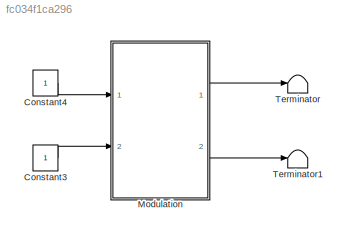
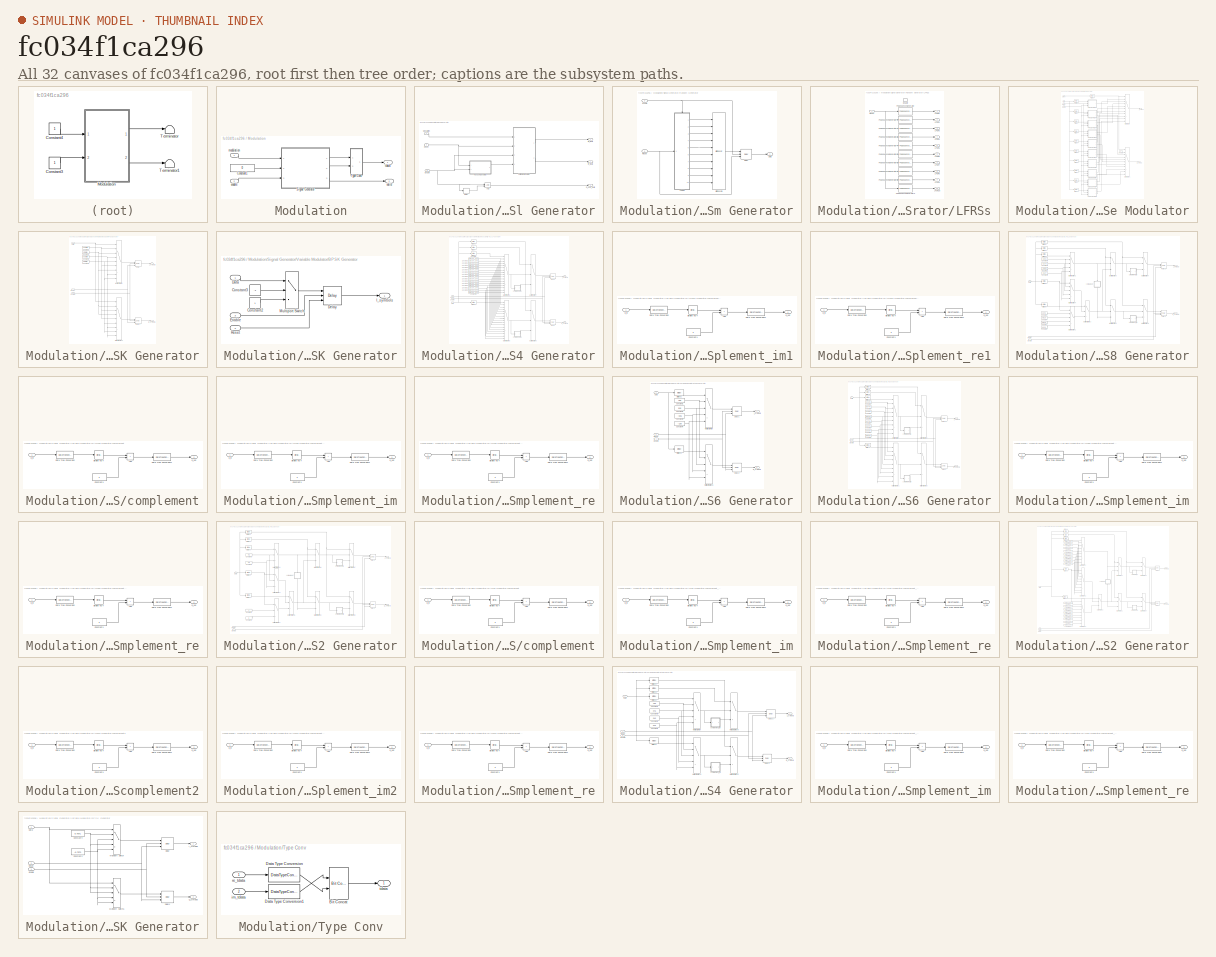
[diagram: thumbnail index - all 32 canvases of the model, root first then tree order]
MODEL slx_fc034f1ca296
KIND model
CONFIG AbsTol = auto
CONFIG EnableMultiTasking = off
CONFIG FixedStep = auto
CONFIG MaxStep = auto
CONFIG MinStep = auto
CONFIG RelTol = 1e-3
CONFIG SampleTimeConstraint = Unconstrained
CONFIG SolverName = VariableStepAuto
CONFIG StartTime = 0.0
CONFIG StopTime = 10.0
BLOCK [Constant] Constant3
  OutDataTypeStr = boolean
BLOCK [Constant] Constant4
  OutDataTypeStr = uint8
BLOCK [SubSystem] Modulation
  NameLocation = top
  Ports = [2, 2]
  RequestExecContextInheritance = off
  TreatAsAtomicUnit = on
BLOCK [Constant] Modulation/Constant1
  OutDataTypeStr = boolean
  Value = 0
BLOCK [SubSystem] Modulation/Signal Generator
  Ports = [3, 3]
  RequestExecContextInheritance = off
BLOCK [Logic] Modulation/Signal Generator/AND
  AllPortsSameDT = off
  IconShape = distinctive
  OutDataTypeStr = boolean
  Ports = [2, 1]
BLOCK [Delay] Modulation/Signal Generator/Delay
  DelayLength = 1
  InputPortMap = u0
  Ports = [1, 1]
BLOCK [Inport] Modulation/Signal Generator/Enable
  Port = 3
  SampleTime = 1/fs
BLOCK [Inport] Modulation/Signal Generator/Modulation
  SampleTime = 1/fs
BLOCK [SubSystem] Modulation/Signal Generator/Random Generator
  Ports = [2, 1]
  RequestExecContextInheritance = off
BLOCK [Reference] Modulation/Signal Generator/Random Generator/Bit Concat1  REF=hdlsllib/Logic and Bit
Operations/Bit Concat
  Ports = [10, 1]
  SourceBlock = hdlsllib/Logic and Bit\nOperations/Bit Concat
  SourceProductBaseCode = SL
  SourceType = Bit Concat
BLOCK [Outport] Modulation/Signal Generator/Random Generator/Data
  VectorParamsAs1DForOutWhenUnconnected = off
BLOCK [Delay] Modulation/Signal Generator/Random Generator/Delay
  DelayLength = 1
  ExternalReset = Level
  InputPortMap = u0,e6,r5
  Ports = [3, 1]
  SampleTime = 1/fs
  ShowEnablePort = on
BLOCK [Inport] Modulation/Signal Generator/Random Generator/Enable
  Port = 2
BLOCK [SubSystem] Modulation/Signal Generator/Random Generator/LFRSs
  Ports = [1, 10, 1]
  RequestExecContextInheritance = off
BLOCK [EnablePort] Modulation/Signal Generator/Random Generator/LFRSs/Enable
  Ports = []
BLOCK [Outport] Modulation/Signal Generator/Random Generator/LFRSs/LFSR1
  InitialOutput = 0
BLOCK [Outport] Modulation/Signal Generator/Random Generator/LFRSs/LFSR10
  InitialOutput = 0
  Port = 10
BLOCK [Outport] Modulation/Signal Generator/Random Generator/LFRSs/LFSR2
  InitialOutput = 0
  Port = 2
BLOCK [Outport] Modulation/Signal Generator/Random Generator/LFRSs/LFSR3
  InitialOutput = 0
  Port = 3
BLOCK [Outport] Modulation/Signal Generator/Random Generator/LFRSs/LFSR4
  InitialOutput = 0
  Port = 4
BLOCK [Outport] Modulation/Signal Generator/Random Generator/LFRSs/LFSR5
  InitialOutput = 0
  Port = 5
BLOCK [Outport] Modulation/Signal Generator/Random Generator/LFRSs/LFSR6
  InitialOutput = 0
  Port = 6
BLOCK [Outport] Modulation/Signal Generator/Random Generator/LFRSs/LFSR7
  InitialOutput = 0
  Port = 7
BLOCK [Outport] Modulation/Signal Generator/Random Generator/LFRSs/LFSR8
  InitialOutput = 0
  Port = 8
BLOCK [Outport] Modulation/Signal Generator/Random Generator/LFRSs/LFSR9
  InitialOutput = 0
  Port = 9
BLOCK [Reference] Modulation/Signal Generator/Random Generator/LFRSs/PN Sequence Generator  REF=commseqgen3/PN Sequence
Generator
  Ports = [1, 1]
  SourceBlock = commseqgen3/PN Sequence\nGenerator
  SourceProductBaseCode = CM
  SourceType = PN Sequence Generator
BLOCK [Reference] Modulation/Signal Generator/Random Generator/LFRSs/PN Sequence Generator1  REF=commseqgen3/PN Sequence
Generator
  Ports = [1, 1]
  SourceBlock = commseqgen3/PN Sequence\nGenerator
  SourceProductBaseCode = CM
  SourceType = PN Sequence Generator
BLOCK [Reference] Modulation/Signal Generator/Random Generator/LFRSs/PN Sequence Generator2  REF=commseqgen3/PN Sequence
Generator
  Ports = [1, 1]
  SourceBlock = commseqgen3/PN Sequence\nGenerator
  SourceProductBaseCode = CM
  SourceType = PN Sequence Generator
BLOCK [Reference] Modulation/Signal Generator/Random Generator/LFRSs/PN Sequence Generator3  REF=commseqgen3/PN Sequence
Generator
  Ports = [1, 1]
  SourceBlock = commseqgen3/PN Sequence\nGenerator
  SourceProductBaseCode = CM
  SourceType = PN Sequence Generator
BLOCK [Reference] Modulation/Signal Generator/Random Generator/LFRSs/PN Sequence Generator4  REF=commseqgen3/PN Sequence
Generator
  Ports = [1, 1]
  SourceBlock = commseqgen3/PN Sequence\nGenerator
  SourceProductBaseCode = CM
  SourceType = PN Sequence Generator
BLOCK [Reference] Modulation/Signal Generator/Random Generator/LFRSs/PN Sequence Generator5  REF=commseqgen3/PN Sequence
Generator
  Ports = [1, 1]
  SourceBlock = commseqgen3/PN Sequence\nGenerator
  SourceProductBaseCode = CM
  SourceType = PN Sequence Generator
BLOCK [Reference] Modulation/Signal Generator/Random Generator/LFRSs/PN Sequence Generator6  REF=commseqgen3/PN Sequence
Generator
  Ports = [1, 1]
  SourceBlock = commseqgen3/PN Sequence\nGenerator
  SourceProductBaseCode = CM
  SourceType = PN Sequence Generator
BLOCK [Reference] Modulation/Signal Generator/Random Generator/LFRSs/PN Sequence Generator7  REF=commseqgen3/PN Sequence
Generator
  Ports = [1, 1]
  SourceBlock = commseqgen3/PN Sequence\nGenerator
  SourceProductBaseCode = CM
  SourceType = PN Sequence Generator
BLOCK [Reference] Modulation/Signal Generator/Random Generator/LFRSs/PN Sequence Generator8  REF=commseqgen3/PN Sequence
Generator
  Ports = [1, 1]
  SourceBlock = commseqgen3/PN Sequence\nGenerator
  SourceProductBaseCode = CM
  SourceType = PN Sequence Generator
BLOCK [Reference] Modulation/Signal Generator/Random Generator/LFRSs/PN Sequence Generator9  REF=commseqgen3/PN Sequence
Generator
  Ports = [1, 1]
  SourceBlock = commseqgen3/PN Sequence\nGenerator
  SourceProductBaseCode = CM
  SourceType = PN Sequence Generator
BLOCK [Inport] Modulation/Signal Generator/Random Generator/LFRSs/Reset
BLOCK [Inport] Modulation/Signal Generator/Random Generator/Reset
BLOCK [Inport] Modulation/Signal Generator/Reset
  Port = 2
  SampleTime = 1/fs
BLOCK [SubSystem] Modulation/Signal Generator/Variable Modulator
  Ports = [4, 2]
  RequestExecContextInheritance = off
BLOCK [SubSystem] Modulation/Signal Generator/Variable Modulator/8PSK Generator
  Ports = [3, 2]
  RequestExecContextInheritance = off
BLOCK [Constant] Modulation/Signal Generator/Variable Modulator/8PSK Generator/Constant1
  OutDataTypeStr = fixdt(1,16,14)
  SampleTime = 1/fs
  Value = cos(pi/8)
BLOCK [Constant] Modulation/Signal Generator/Variable Modulator/8PSK Generator/Constant2
  OutDataTypeStr = fixdt(1,16,14)
  SampleTime = 1/fs
  Value = sin(pi/8)
  VectorParams1D = off
BLOCK [Constant] Modulation/Signal Generator/Variable Modulator/8PSK Generator/Constant3
  OutDataTypeStr = fixdt(1,16,14)
  SampleTime = 1/fs
  Value = -cos(pi/8)
BLOCK [Constant] Modulation/Signal Generator/Variable Modulator/8PSK Generator/Constant4
  OutDataTypeStr = fixdt(1,16,14)
  SampleTime = 1/fs
  Value = -sin(pi/8)
BLOCK [Inport] Modulation/Signal Generator/Variable Modulator/8PSK Generator/Data
BLOCK [Delay] Modulation/Signal Generator/Variable Modulator/8PSK Generator/Delay
  DelayLength = 1
  ExternalReset = Level
  InputPortMap = u0,e6,r5
  Ports = [3, 1]
  SampleTime = 1/fs
  ShowEnablePort = on
BLOCK [Delay] Modulation/Signal Generator/Variable Modulator/8PSK Generator/Delay1
  DelayLength = 1
  ExternalReset = Level
  InputPortMap = u0,e6,r5
  Ports = [3, 1]
  SampleTime = 1/fs
  ShowEnablePort = on
BLOCK [Inport] Modulation/Signal Generator/Variable Modulator/8PSK Generator/Enable
  Port = 3
BLOCK [Outport] Modulation/Signal Generator/Variable Modulator/8PSK Generator/I_symbols
  VectorParamsAs1DForOutWhenUnconnected = off
BLOCK [MultiPortSwitch] Modulation/Signal Generator/Variable Modulator/8PSK Generator/Multiport Switch
  DataPortOrder = Zero-based contiguous
  InputSameDT = off
  Inputs = 8
  Ports = [9, 1]
  SaturateOnIntegerOverflow = off
  zeroidx = on
BLOCK [MultiPortSwitch] Modulation/Signal Generator/Variable Modulator/8PSK Generator/Multiport Switch1
  DataPortOrder = Zero-based contiguous
  InputSameDT = off
  Inputs = 8
  Ports = [9, 1]
  SaturateOnIntegerOverflow = off
  zeroidx = on
BLOCK [Outport] Modulation/Signal Generator/Variable Modulator/8PSK Generator/Q_symbols
  Port = 2
  VectorParamsAs1DForOutWhenUnconnected = off
BLOCK [Inport] Modulation/Signal Generator/Variable Modulator/8PSK Generator/Reset
  Port = 2
BLOCK [SubSystem] Modulation/Signal Generator/Variable Modulator/BPSK Generator
  Ports = [3, 1]
  RequestExecContextInheritance = off
BLOCK [Constant] Modulation/Signal Generator/Variable Modulator/BPSK Generator/Constant2
  OutDataTypeStr = fixdt(1,16,15)
  SampleTime = 1/fs
BLOCK [Constant] Modulation/Signal Generator/Variable Modulator/BPSK Generator/Constant3
  OutDataTypeStr = fixdt(1,16,15)
  SampleTime = 1/fs
  Value = -1
BLOCK [Inport] Modulation/Signal Generator/Variable Modulator/BPSK Generator/Data
BLOCK [Delay] Modulation/Signal Generator/Variable Modulator/BPSK Generator/Delay
  DelayLength = 1
  ExternalReset = Level
  InitialCondition = 0
  InputPortMap = u0,e6,r5
  Ports = [3, 1]
  SampleTime = 1/fs
  ShowEnablePort = on
  UseCircularBuffer = on
  UserDataPersistent = on
BLOCK [Inport] Modulation/Signal Generator/Variable Modulator/BPSK Generator/Enable
  Port = 3
BLOCK [Outport] Modulation/Signal Generator/Variable Modulator/BPSK Generator/I_symbols
  VectorParamsAs1DForOutWhenUnconnected = off
BLOCK [MultiPortSwitch] Modulation/Signal Generator/Variable Modulator/BPSK Generator/Multiport Switch
  DataPortOrder = Zero-based contiguous
  InputSameDT = off
  Inputs = 2
  Ports = [3, 1]
  SaturateOnIntegerOverflow = off
  zeroidx = on
BLOCK [Inport] Modulation/Signal Generator/Variable Modulator/BPSK Generator/Reset
  Port = 2
BLOCK [Reference] Modulation/Signal Generator/Variable Modulator/Bit Slice  REF=hdlsllib/Logic and Bit
Operations/Bit Slice
  Ports = [1, 1]
  SourceBlock = hdlsllib/Logic and Bit\nOperations/Bit Slice
  SourceProductBaseCode = SL
  SourceType = Bit Slice
BLOCK [Reference] Modulation/Signal Generator/Variable Modulator/Bit Slice1  REF=hdlsllib/Logic and Bit
Operations/Bit Slice
  Ports = [1, 1]
  SourceBlock = hdlsllib/Logic and Bit\nOperations/Bit Slice
  SourceProductBaseCode = SL
  SourceType = Bit Slice
BLOCK [Reference] Modulation/Signal Generator/Variable Modulator/Bit Slice10  REF=hdlsllib/Logic and Bit
Operations/Bit Slice
  Ports = [1, 1]
  SourceBlock = hdlsllib/Logic and Bit\nOperations/Bit Slice
  SourceProductBaseCode = SL
  SourceType = Bit Slice
BLOCK [Reference] Modulation/Signal Generator/Variable Modulator/Bit Slice2  REF=hdlsllib/Logic and Bit
Operations/Bit Slice
  Ports = [1, 1]
  SourceBlock = hdlsllib/Logic and Bit\nOperations/Bit Slice
  SourceProductBaseCode = SL
  SourceType = Bit Slice
BLOCK [Reference] Modulation/Signal Generator/Variable Modulator/Bit Slice3  REF=hdlsllib/Logic and Bit
Operations/Bit Slice
  Ports = [1, 1]
  SourceBlock = hdlsllib/Logic and Bit\nOperations/Bit Slice
  SourceProductBaseCode = SL
  SourceType = Bit Slice
BLOCK [Reference] Modulation/Signal Generator/Variable Modulator/Bit Slice4  REF=hdlsllib/Logic and Bit
Operations/Bit Slice
  Ports = [1, 1]
  SourceBlock = hdlsllib/Logic and Bit\nOperations/Bit Slice
  SourceProductBaseCode = SL
  SourceType = Bit Slice
BLOCK [Reference] Modulation/Signal Generator/Variable Modulator/Bit Slice5  REF=hdlsllib/Logic and Bit
Operations/Bit Slice
  Ports = [1, 1]
  SourceBlock = hdlsllib/Logic and Bit\nOperations/Bit Slice
  SourceProductBaseCode = SL
  SourceType = Bit Slice
BLOCK [Reference] Modulation/Signal Generator/Variable Modulator/Bit Slice6  REF=hdlsllib/Logic and Bit
Operations/Bit Slice
  Ports = [1, 1]
  SourceBlock = hdlsllib/Logic and Bit\nOperations/Bit Slice
  SourceProductBaseCode = SL
  SourceType = Bit Slice
BLOCK [Reference] Modulation/Signal Generator/Variable Modulator/Bit Slice7  REF=hdlsllib/Logic and Bit
Operations/Bit Slice
  Ports = [1, 1]
  SourceBlock = hdlsllib/Logic and Bit\nOperations/Bit Slice
  SourceProductBaseCode = SL
  SourceType = Bit Slice
BLOCK [Reference] Modulation/Signal Generator/Variable Modulator/Bit Slice8  REF=hdlsllib/Logic and Bit
Operations/Bit Slice
  Ports = [1, 1]
  SourceBlock = hdlsllib/Logic and Bit\nOperations/Bit Slice
  SourceProductBaseCode = SL
  SourceType = Bit Slice
BLOCK [Reference] Modulation/Signal Generator/Variable Modulator/Bit Slice9  REF=hdlsllib/Logic and Bit
Operations/Bit Slice
  Ports = [1, 1]
  SourceBlock = hdlsllib/Logic and Bit\nOperations/Bit Slice
  SourceProductBaseCode = SL
  SourceType = Bit Slice
BLOCK [Constant] Modulation/Signal Generator/Variable Modulator/Constant1
  OutDataTypeStr = fixdt(0,1,0)
  SampleTime = 1/fs
  Value = 0
  VectorParams1D = off
BLOCK [Inport] Modulation/Signal Generator/Variable Modulator/Data
  Port = 4
BLOCK [Inport] Modulation/Signal Generator/Variable Modulator/Enable
  Port = 3
BLOCK [Outport] Modulation/Signal Generator/Variable Modulator/I_symbols
  Port = 2
  VectorParamsAs1DForOutWhenUnconnected = off
BLOCK [MultiPortSwitch] Modulation/Signal Generator/Variable Modulator/Multiport Switch
  DataPortOrder = Zero-based contiguous
  InputSameDT = off
  Inputs = 10
  Ports = [11, 1]
  SaturateOnIntegerOverflow = off
  zeroidx = on
BLOCK [MultiPortSwitch] Modulation/Signal Generator/Variable Modulator/Multiport Switch1
  DataPortOrder = Zero-based contiguous
  InputSameDT = off
  Inputs = 10
  Ports = [11, 1]
  SaturateOnIntegerOverflow = off
  zeroidx = on
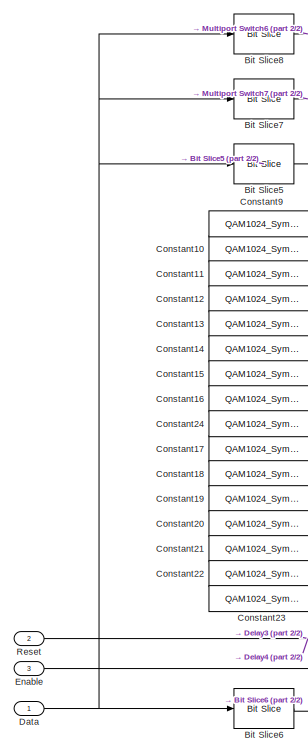
[diagram: Modulation/Signal Generator/Variable Modulator/QAM1024 Generator - part 1/2, middle left region]
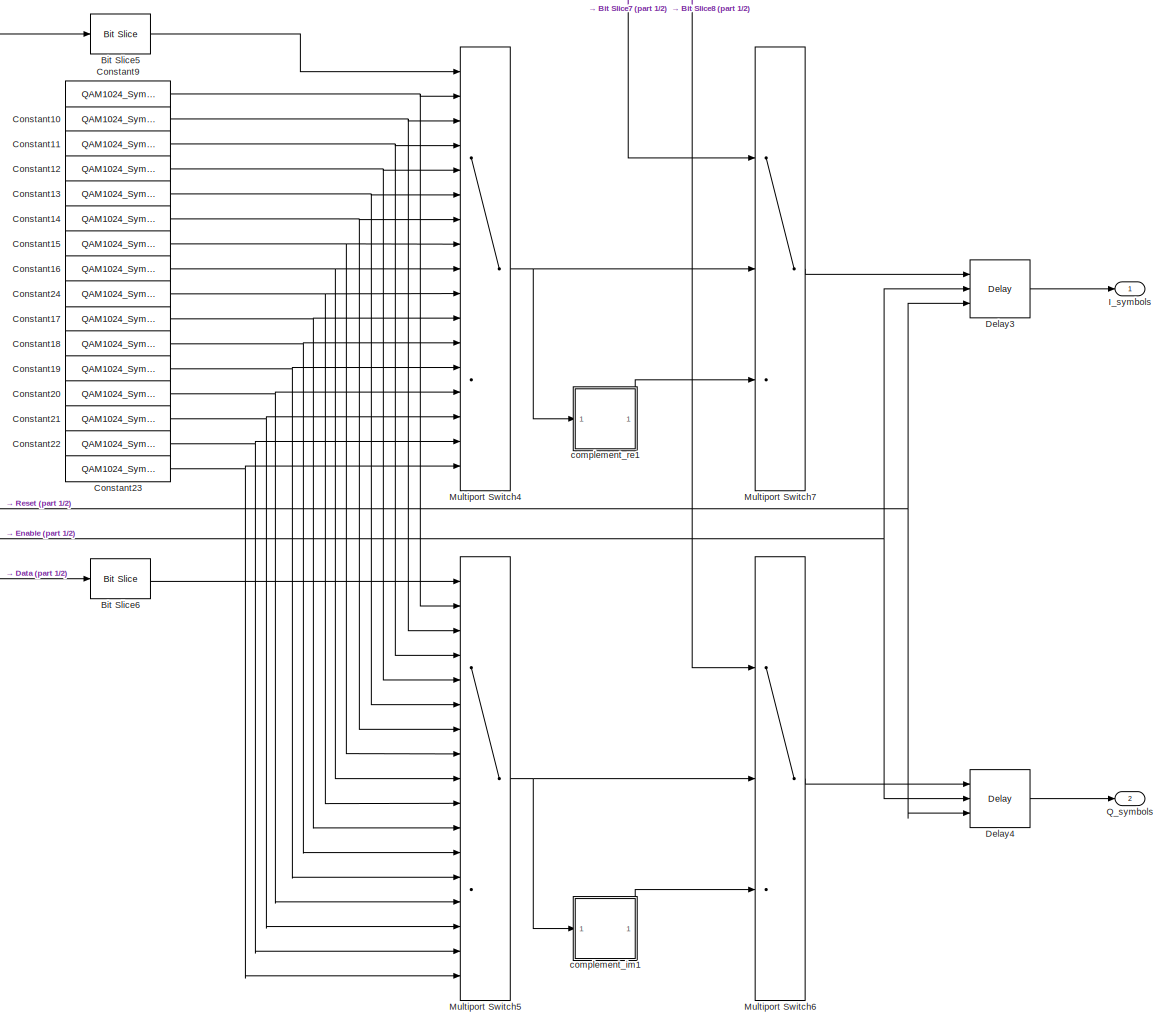
[diagram: Modulation/Signal Generator/Variable Modulator/QAM1024 Generator - part 2/2, most of the canvas]
BLOCK [SubSystem] Modulation/Signal Generator/Variable Modulator/QAM1024 Generator
  Ports = [3, 2]
  RequestExecContextInheritance = off
BLOCK [Reference] Modulation/Signal Generator/Variable Modulator/QAM1024 Generator/Bit Slice5  REF=hdlsllib/Logic and Bit
Operations/Bit Slice
  Ports = [1, 1]
  SourceBlock = hdlsllib/Logic and Bit\nOperations/Bit Slice
  SourceProductBaseCode = SL
  SourceType = Bit Slice
BLOCK [Reference] Modulation/Signal Generator/Variable Modulator/QAM1024 Generator/Bit Slice6  REF=hdlsllib/Logic and Bit
Operations/Bit Slice
  Ports = [1, 1]
  SourceBlock = hdlsllib/Logic and Bit\nOperations/Bit Slice
  SourceProductBaseCode = SL
  SourceType = Bit Slice
BLOCK [Reference] Modulation/Signal Generator/Variable Modulator/QAM1024 Generator/Bit Slice7  REF=hdlsllib/Logic and Bit
Operations/Bit Slice
  Ports = [1, 1]
  SourceBlock = hdlsllib/Logic and Bit\nOperations/Bit Slice
  SourceProductBaseCode = SL
  SourceType = Bit Slice
BLOCK [Reference] Modulation/Signal Generator/Variable Modulator/QAM1024 Generator/Bit Slice8  REF=hdlsllib/Logic and Bit
Operations/Bit Slice
  Ports = [1, 1]
  SourceBlock = hdlsllib/Logic and Bit\nOperations/Bit Slice
  SourceProductBaseCode = SL
  SourceType = Bit Slice
BLOCK [Constant] Modulation/Signal Generator/Variable Modulator/QAM1024 Generator/Constant10
  OutDataTypeStr = fixdt(1,16,14)
  SampleTime = 1/fs
  Value = QAM1024_Sym(31)
BLOCK [Constant] Modulation/Signal Generator/Variable Modulator/QAM1024 Generator/Constant11
  OutDataTypeStr = fixdt(1,16,14)
  SampleTime = 1/fs
  Value = QAM1024_Sym(30)
BLOCK [Constant] Modulation/Signal Generator/Variable Modulator/QAM1024 Generator/Constant12
  OutDataTypeStr = fixdt(1,16,14)
  SampleTime = 1/fs
  Value = QAM1024_Sym(29)
BLOCK [Constant] Modulation/Signal Generator/Variable Modulator/QAM1024 Generator/Constant13
  OutDataTypeStr = fixdt(1,16,14)
  SampleTime = 1/fs
  Value = QAM1024_Sym(28)
BLOCK [Constant] Modulation/Signal Generator/Variable Modulator/QAM1024 Generator/Constant14
  OutDataTypeStr = fixdt(1,16,14)
  SampleTime = 1/fs
  Value = QAM1024_Sym(27)
BLOCK [Constant] Modulation/Signal Generator/Variable Modulator/QAM1024 Generator/Constant15
  OutDataTypeStr = fixdt(1,16,14)
  SampleTime = 1/fs
  Value = QAM1024_Sym(26)
BLOCK [Constant] Modulation/Signal Generator/Variable Modulator/QAM1024 Generator/Constant16
  OutDataTypeStr = fixdt(1,16,14)
  SampleTime = 1/fs
  Value = QAM1024_Sym(25)
BLOCK [Constant] Modulation/Signal Generator/Variable Modulator/QAM1024 Generator/Constant17
  OutDataTypeStr = fixdt(1,16,14)
  SampleTime = 1/fs
  Value = QAM1024_Sym(23)
BLOCK [Constant] Modulation/Signal Generator/Variable Modulator/QAM1024 Generator/Constant18
  OutDataTypeStr = fixdt(1,16,14)
  SampleTime = 1/fs
  Value = QAM1024_Sym(22)
BLOCK [Constant] Modulation/Signal Generator/Variable Modulator/QAM1024 Generator/Constant19
  OutDataTypeStr = fixdt(1,16,14)
  SampleTime = 1/fs
  Value = QAM1024_Sym(21)
BLOCK [Constant] Modulation/Signal Generator/Variable Modulator/QAM1024 Generator/Constant20
  OutDataTypeStr = fixdt(1,16,14)
  SampleTime = 1/fs
  Value = QAM1024_Sym(20)
BLOCK [Constant] Modulation/Signal Generator/Variable Modulator/QAM1024 Generator/Constant21
  OutDataTypeStr = fixdt(1,16,14)
  SampleTime = 1/fs
  Value = QAM1024_Sym(19)
BLOCK [Constant] Modulation/Signal Generator/Variable Modulator/QAM1024 Generator/Constant22
  OutDataTypeStr = fixdt(1,16,14)
  SampleTime = 1/fs
  Value = QAM1024_Sym(18)
BLOCK [Constant] Modulation/Signal Generator/Variable Modulator/QAM1024 Generator/Constant23
  OutDataTypeStr = fixdt(1,16,14)
  SampleTime = 1/fs
  Value = QAM1024_Sym(17)
BLOCK [Constant] Modulation/Signal Generator/Variable Modulator/QAM1024 Generator/Constant24
  OutDataTypeStr = fixdt(1,16,14)
  SampleTime = 1/fs
  Value = QAM1024_Sym(24)
BLOCK [Constant] Modulation/Signal Generator/Variable Modulator/QAM1024 Generator/Constant9
  OutDataTypeStr = fixdt(1,16,14)
  SampleTime = 1/fs
  Value = QAM1024_Sym(32)
BLOCK [Inport] Modulation/Signal Generator/Variable Modulator/QAM1024 Generator/Data
BLOCK [Delay] Modulation/Signal Generator/Variable Modulator/QAM1024 Generator/Delay3
  DelayLength = 1
  ExternalReset = Level
  InputPortMap = u0,e6,r5
  Ports = [3, 1]
  SampleTime = 1/fs
  ShowEnablePort = on
BLOCK [Delay] Modulation/Signal Generator/Variable Modulator/QAM1024 Generator/Delay4
  DelayLength = 1
  ExternalReset = Level
  InputPortMap = u0,e6,r5
  Ports = [3, 1]
  SampleTime = 1/fs
  ShowEnablePort = on
BLOCK [Inport] Modulation/Signal Generator/Variable Modulator/QAM1024 Generator/Enable
  Port = 3
BLOCK [Outport] Modulation/Signal Generator/Variable Modulator/QAM1024 Generator/I_symbols
  VectorParamsAs1DForOutWhenUnconnected = off
BLOCK [MultiPortSwitch] Modulation/Signal Generator/Variable Modulator/QAM1024 Generator/Multiport Switch4
  DataPortOrder = Zero-based contiguous
  InputSameDT = off
  Inputs = 16
  Ports = [17, 1]
  SaturateOnIntegerOverflow = off
  zeroidx = on
BLOCK [MultiPortSwitch] Modulation/Signal Generator/Variable Modulator/QAM1024 Generator/Multiport Switch5
  DataPortOrder = Zero-based contiguous
  InputSameDT = off
  Inputs = 16
  Ports = [17, 1]
  SaturateOnIntegerOverflow = off
  zeroidx = on
BLOCK [MultiPortSwitch] Modulation/Signal Generator/Variable Modulator/QAM1024 Generator/Multiport Switch6
  DataPortOrder = Zero-based contiguous
  InputSameDT = off
  Inputs = 2
  Ports = [3, 1]
  SaturateOnIntegerOverflow = off
  zeroidx = on
BLOCK [MultiPortSwitch] Modulation/Signal Generator/Variable Modulator/QAM1024 Generator/Multiport Switch7
  DataPortOrder = Zero-based contiguous
  InputSameDT = off
  Inputs = 2
  Ports = [3, 1]
  SaturateOnIntegerOverflow = off
  zeroidx = on
BLOCK [Outport] Modulation/Signal Generator/Variable Modulator/QAM1024 Generator/Q_symbols
  Port = 2
  VectorParamsAs1DForOutWhenUnconnected = off
BLOCK [Inport] Modulation/Signal Generator/Variable Modulator/QAM1024 Generator/Reset
  Port = 2
BLOCK [SubSystem] Modulation/Signal Generator/Variable Modulator/QAM1024 Generator/complement_im1
  Ports = [1, 1]
  RequestExecContextInheritance = off
BLOCK [Sum] Modulation/Signal Generator/Variable Modulator/QAM1024 Generator/complement_im1/Add
  IconShape = rectangular
  OutDataTypeStr = uint16
  Ports = [2, 1]
BLOCK [Reference] Modulation/Signal Generator/Variable Modulator/QAM1024 Generator/complement_im1/Bitwise NOT  REF=simulink/Logic and Bit
Operations/Bitwise
Operator
  Ports = [1, 1]
  SourceBlock = simulink/Logic and Bit\nOperations/Bitwise\nOperator
  SourceProductBaseCode = SL
  SourceType = Bitwise Operator
BLOCK [Constant] Modulation/Signal Generator/Variable Modulator/QAM1024 Generator/complement_im1/Constant1
  OutDataTypeStr = uint16
  SampleTime = 1/fs
BLOCK [DataTypeConversion] Modulation/Signal Generator/Variable Modulator/QAM1024 Generator/complement_im1/Data Type Conversion
  ConvertRealWorld = Stored Integer (SI)
  OutDataTypeStr = uint16
  RndMeth = Floor
  SaturateOnIntegerOverflow = off
BLOCK [DataTypeConversion] Modulation/Signal Generator/Variable Modulator/QAM1024 Generator/complement_im1/Data Type Conversion1
  ConvertRealWorld = Stored Integer (SI)
  OutDataTypeStr = fixdt(1,16,14)
  RndMeth = Floor
  SaturateOnIntegerOverflow = off
BLOCK [Inport] Modulation/Signal Generator/Variable Modulator/QAM1024 Generator/complement_im1/d_in
BLOCK [Outport] Modulation/Signal Generator/Variable Modulator/QAM1024 Generator/complement_im1/d_out
BLOCK [SubSystem] Modulation/Signal Generator/Variable Modulator/QAM1024 Generator/complement_re1
  Ports = [1, 1]
  RequestExecContextInheritance = off
BLOCK [Sum] Modulation/Signal Generator/Variable Modulator/QAM1024 Generator/complement_re1/Add
  IconShape = rectangular
  OutDataTypeStr = uint16
  Ports = [2, 1]
BLOCK [Reference] Modulation/Signal Generator/Variable Modulator/QAM1024 Generator/complement_re1/Bitwise NOT  REF=simulink/Logic and Bit
Operations/Bitwise
Operator
  Ports = [1, 1]
  SourceBlock = simulink/Logic and Bit\nOperations/Bitwise\nOperator
  SourceProductBaseCode = SL
  SourceType = Bitwise Operator
BLOCK [Constant] Modulation/Signal Generator/Variable Modulator/QAM1024 Generator/complement_re1/Constant1
  OutDataTypeStr = uint16
  SampleTime = 1/fs
BLOCK [DataTypeConversion] Modulation/Signal Generator/Variable Modulator/QAM1024 Generator/complement_re1/Data Type Conversion
  ConvertRealWorld = Stored Integer (SI)
  OutDataTypeStr = uint16
  RndMeth = Floor
  SaturateOnIntegerOverflow = off
BLOCK [DataTypeConversion] Modulation/Signal Generator/Variable Modulator/QAM1024 Generator/complement_re1/Data Type Conversion1
  ConvertRealWorld = Stored Integer (SI)
  OutDataTypeStr = fixdt(1,16,14)
  RndMeth = Floor
  SaturateOnIntegerOverflow = off
BLOCK [Inport] Modulation/Signal Generator/Variable Modulator/QAM1024 Generator/complement_re1/d_in
BLOCK [Outport] Modulation/Signal Generator/Variable Modulator/QAM1024 Generator/complement_re1/d_out
BLOCK [SubSystem] Modulation/Signal Generator/Variable Modulator/QAM128 Generator
  Ports = [3, 2]
  RequestExecContextInheritance = off
BLOCK [Reference] Modulation/Signal Generator/Variable Modulator/QAM128 Generator/Bit Slice1  REF=hdlsllib/Logic and Bit
Operations/Bit Slice
  Ports = [1, 1]
  SourceBlock = hdlsllib/Logic and Bit\nOperations/Bit Slice
  SourceProductBaseCode = HD
  SourceType = Bit Slice
BLOCK [Reference] Modulation/Signal Generator/Variable Modulator/QAM128 Generator/Bit Slice2  REF=hdlsllib/Logic and Bit
Operations/Bit Slice
  Ports = [1, 1]
  SourceBlock = hdlsllib/Logic and Bit\nOperations/Bit Slice
  SourceProductBaseCode = HD
  SourceType = Bit Slice
BLOCK [Reference] Modulation/Signal Generator/Variable Modulator/QAM128 Generator/Bit Slice3  REF=hdlsllib/Logic and Bit
Operations/Bit Slice
  Ports = [1, 1]
  SourceBlock = hdlsllib/Logic and Bit\nOperations/Bit Slice
  SourceProductBaseCode = HD
  SourceType = Bit Slice
BLOCK [Reference] Modulation/Signal Generator/Variable Modulator/QAM128 Generator/Bit Slice4  REF=hdlsllib/Logic and Bit
Operations/Bit Slice
  Ports = [1, 1]
  SourceBlock = hdlsllib/Logic and Bit\nOperations/Bit Slice
  SourceProductBaseCode = HD
  SourceType = Bit Slice
BLOCK [Reference] Modulation/Signal Generator/Variable Modulator/QAM128 Generator/Bit Slice6  REF=hdlsllib/Logic and Bit
Operations/Bit Slice
  Ports = [1, 1]
  SourceBlock = hdlsllib/Logic and Bit\nOperations/Bit Slice
  SourceProductBaseCode = HD
  SourceType = Bit Slice
BLOCK [Constant] Modulation/Signal Generator/Variable Modulator/QAM128 Generator/Constant1
  OutDataTypeStr = fixdt(1,16,14)
  SampleTime = 1/fs
  Value = 0.455
BLOCK [Constant] Modulation/Signal Generator/Variable Modulator/QAM128 Generator/Constant2
  OutDataTypeStr = fixdt(1,16,14)
  SampleTime = 1/fs
  Value = 1.001
BLOCK [Constant] Modulation/Signal Generator/Variable Modulator/QAM128 Generator/Constant3
  OutDataTypeStr = fixdt(1,16,14)
  SampleTime = 1/fs
  Value = 0.091
BLOCK [Constant] Modulation/Signal Generator/Variable Modulator/QAM128 Generator/Constant4
  OutDataTypeStr = fixdt(1,16,14)
  SampleTime = 1/fs
  Value = 0.819
BLOCK [Constant] Modulation/Signal Generator/Variable Modulator/QAM128 Generator/Constant5
  OutDataTypeStr = fixdt(1,16,14)
  SampleTime = 1/fs
  Value = 0.637
BLOCK [Constant] Modulation/Signal Generator/Variable Modulator/QAM128 Generator/Constant6
  OutDataTypeStr = fixdt(1,16,14)
  SampleTime = 1/fs
  Value = 0.273
BLOCK [Constant] Modulation/Signal Generator/Variable Modulator/QAM128 Generator/Constant7
  OutDataTypeStr = fixdt(1,16,14)
  SampleTime = 1/fs
  Value = -0.819
BLOCK [Constant] Modulation/Signal Generator/Variable Modulator/QAM128 Generator/Constant8
  OutDataTypeStr = fixdt(1,16,14)
  SampleTime = 1/fs
  Value = -1.001
BLOCK [Inport] Modulation/Signal Generator/Variable Modulator/QAM128 Generator/Data
BLOCK [Delay] Modulation/Signal Generator/Variable Modulator/QAM128 Generator/Delay1
  DelayLength = 1
  ExternalReset = Level
  InputPortMap = u0,e6,r5
  Ports = [3, 1]
  SampleTime = 1/fs
  ShowEnablePort = on
BLOCK [Delay] Modulation/Signal Generator/Variable Modulator/QAM128 Generator/Delay2
  DelayLength = 1
  ExternalReset = Level
  InputPortMap = u0,e6,r5
  Ports = [3, 1]
  SampleTime = 1/fs
  ShowEnablePort = on
BLOCK [Inport] Modulation/Signal Generator/Variable Modulator/QAM128 Generator/Enable
  Port = 3
BLOCK [Outport] Modulation/Signal Generator/Variable Modulator/QAM128 Generator/I_symbols
  VectorParamsAs1DForOutWhenUnconnected = off
BLOCK [MultiPortSwitch] Modulation/Signal Generator/Variable Modulator/QAM128 Generator/Multiport Switch1
  DataPortOrder = Zero-based contiguous
  InputSameDT = off
  Inputs = 4
  Ports = [5, 1]
  SaturateOnIntegerOverflow = off
  zeroidx = on
BLOCK [MultiPortSwitch] Modulation/Signal Generator/Variable Modulator/QAM128 Generator/Multiport Switch2
  DataPortOrder = Zero-based contiguous
  InputSameDT = off
  Inputs = 4
  Ports = [5, 1]
  SaturateOnIntegerOverflow = off
  zeroidx = on
BLOCK [MultiPortSwitch] Modulation/Signal Generator/Variable Modulator/QAM128 Generator/Multiport Switch3
  DataPortOrder = Zero-based contiguous
  InputSameDT = off
  Inputs = 2
  Ports = [3, 1]
  SaturateOnIntegerOverflow = off
  zeroidx = on
BLOCK [MultiPortSwitch] Modulation/Signal Generator/Variable Modulator/QAM128 Generator/Multiport Switch4
  DataPortOrder = Zero-based contiguous
  InputSameDT = off
  Inputs = 4
  Ports = [5, 1]
  SaturateOnIntegerOverflow = off
  zeroidx = on
BLOCK [MultiPortSwitch] Modulation/Signal Generator/Variable Modulator/QAM128 Generator/Multiport Switch5
  DataPortOrder = Zero-based contiguous
  InputSameDT = off
  Inputs = 2
  Ports = [3, 1]
  SaturateOnIntegerOverflow = off
  zeroidx = on
BLOCK [MultiPortSwitch] Modulation/Signal Generator/Variable Modulator/QAM128 Generator/Multiport Switch6
  DataPortOrder = Zero-based contiguous
  InputSameDT = off
  Inputs = 2
  Ports = [3, 1]
  SaturateOnIntegerOverflow = off
  zeroidx = on
BLOCK [MultiPortSwitch] Modulation/Signal Generator/Variable Modulator/QAM128 Generator/Multiport Switch7
  DataPortOrder = Zero-based contiguous
  InputSameDT = off
  Inputs = 2
  Ports = [3, 1]
  SaturateOnIntegerOverflow = off
  zeroidx = on
BLOCK [MultiPortSwitch] Modulation/Signal Generator/Variable Modulator/QAM128 Generator/Multiport Switch8
  DataPortOrder = Zero-based contiguous
  InputSameDT = off
  Inputs = 2
  Ports = [3, 1]
  SaturateOnIntegerOverflow = off
  zeroidx = on
BLOCK [Outport] Modulation/Signal Generator/Variable Modulator/QAM128 Generator/Q_symbols
  Port = 2
  VectorParamsAs1DForOutWhenUnconnected = off
BLOCK [Inport] Modulation/Signal Generator/Variable Modulator/QAM128 Generator/Reset
  Port = 2
BLOCK [SubSystem] Modulation/Signal Generator/Variable Modulator/QAM128 Generator/complement
  NameLocation = left
  Ports = [1, 1]
  RequestExecContextInheritance = off
BLOCK [Sum] Modulation/Signal Generator/Variable Modulator/QAM128 Generator/complement/Add
  IconShape = rectangular
  OutDataTypeStr = uint16
  Ports = [2, 1]
BLOCK [Reference] Modulation/Signal Generator/Variable Modulator/QAM128 Generator/complement/Bitwise NOT  REF=simulink/Logic and Bit
Operations/Bitwise
Operator
  Ports = [1, 1]
  SourceBlock = simulink/Logic and Bit\nOperations/Bitwise\nOperator
  SourceProductBaseCode = SL
  SourceType = Bitwise Operator
BLOCK [Constant] Modulation/Signal Generator/Variable Modulator/QAM128 Generator/complement/Constant1
  OutDataTypeStr = uint16
  SampleTime = 1/fs
BLOCK [DataTypeConversion] Modulation/Signal Generator/Variable Modulator/QAM128 Generator/complement/Data Type Conversion
  ConvertRealWorld = Stored Integer (SI)
  OutDataTypeStr = uint16
  RndMeth = Floor
  SaturateOnIntegerOverflow = off
BLOCK [DataTypeConversion] Modulation/Signal Generator/Variable Modulator/QAM128 Generator/complement/Data Type Conversion1
  ConvertRealWorld = Stored Integer (SI)
  OutDataTypeStr = fixdt(1,16,14)
  RndMeth = Floor
  SaturateOnIntegerOverflow = off
BLOCK [Inport] Modulation/Signal Generator/Variable Modulator/QAM128 Generator/complement/d_in
BLOCK [Outport] Modulation/Signal Generator/Variable Modulator/QAM128 Generator/complement/d_out
BLOCK [SubSystem] Modulation/Signal Generator/Variable Modulator/QAM128 Generator/complement_im
  Ports = [1, 1]
  RequestExecContextInheritance = off
BLOCK [Sum] Modulation/Signal Generator/Variable Modulator/QAM128 Generator/complement_im/Add
  IconShape = rectangular
  OutDataTypeStr = uint16
  Ports = [2, 1]
BLOCK [Reference] Modulation/Signal Generator/Variable Modulator/QAM128 Generator/complement_im/Bitwise NOT  REF=simulink/Logic and Bit
Operations/Bitwise
Operator
  Ports = [1, 1]
  SourceBlock = simulink/Logic and Bit\nOperations/Bitwise\nOperator
  SourceProductBaseCode = SL
  SourceType = Bitwise Operator
BLOCK [Constant] Modulation/Signal Generator/Variable Modulator/QAM128 Generator/complement_im/Constant1
  OutDataTypeStr = uint16
  SampleTime = 1/fs
BLOCK [DataTypeConversion] Modulation/Signal Generator/Variable Modulator/QAM128 Generator/complement_im/Data Type Conversion
  ConvertRealWorld = Stored Integer (SI)
  OutDataTypeStr = uint16
  RndMeth = Floor
  SaturateOnIntegerOverflow = off
BLOCK [DataTypeConversion] Modulation/Signal Generator/Variable Modulator/QAM128 Generator/complement_im/Data Type Conversion1
  ConvertRealWorld = Stored Integer (SI)
  OutDataTypeStr = fixdt(1,16,14)
  RndMeth = Floor
  SaturateOnIntegerOverflow = off
BLOCK [Inport] Modulation/Signal Generator/Variable Modulator/QAM128 Generator/complement_im/d_in
BLOCK [Outport] Modulation/Signal Generator/Variable Modulator/QAM128 Generator/complement_im/d_out
BLOCK [SubSystem] Modulation/Signal Generator/Variable Modulator/QAM128 Generator/complement_re
  Ports = [1, 1]
  RequestExecContextInheritance = off
BLOCK [Sum] Modulation/Signal Generator/Variable Modulator/QAM128 Generator/complement_re/Add
  IconShape = rectangular
  OutDataTypeStr = uint16
  Ports = [2, 1]
BLOCK [Reference] Modulation/Signal Generator/Variable Modulator/QAM128 Generator/complement_re/Bitwise NOT  REF=simulink/Logic and Bit
Operations/Bitwise
Operator
  Ports = [1, 1]
  SourceBlock = simulink/Logic and Bit\nOperations/Bitwise\nOperator
  SourceProductBaseCode = SL
  SourceType = Bitwise Operator
BLOCK [Constant] Modulation/Signal Generator/Variable Modulator/QAM128 Generator/complement_re/Constant1
  OutDataTypeStr = uint16
  SampleTime = 1/fs
BLOCK [DataTypeConversion] Modulation/Signal Generator/Variable Modulator/QAM128 Generator/complement_re/Data Type Conversion
  ConvertRealWorld = Stored Integer (SI)
  OutDataTypeStr = uint16
  RndMeth = Floor
  SaturateOnIntegerOverflow = off
BLOCK [DataTypeConversion] Modulation/Signal Generator/Variable Modulator/QAM128 Generator/complement_re/Data Type Conversion1
  ConvertRealWorld = Stored Integer (SI)
  OutDataTypeStr = fixdt(1,16,14)
  RndMeth = Floor
  SaturateOnIntegerOverflow = off
BLOCK [Inport] Modulation/Signal Generator/Variable Modulator/QAM128 Generator/complement_re/d_in
BLOCK [Outport] Modulation/Signal Generator/Variable Modulator/QAM128 Generator/complement_re/d_out
BLOCK [SubSystem] Modulation/Signal Generator/Variable Modulator/QAM16 Generator
  Ports = [3, 2]
  RequestExecContextInheritance = off
BLOCK [Reference] Modulation/Signal Generator/Variable Modulator/QAM16 Generator/Bit Slice1  REF=hdlsllib/Logic and Bit
Operations/Bit Slice
  Ports = [1, 1]
  SourceBlock = hdlsllib/Logic and Bit\nOperations/Bit Slice
  SourceProductBaseCode = SL
  SourceType = Bit Slice
BLOCK [Reference] Modulation/Signal Generator/Variable Modulator/QAM16 Generator/Bit Slice2  REF=hdlsllib/Logic and Bit
Operations/Bit Slice
  Ports = [1, 1]
  SourceBlock = hdlsllib/Logic and Bit\nOperations/Bit Slice
  SourceProductBaseCode = SL
  SourceType = Bit Slice
BLOCK [Constant] Modulation/Signal Generator/Variable Modulator/QAM16 Generator/Constant1
  OutDataTypeStr = fixdt(1,16,14)
  SampleTime = 1/fs
  Value = 1.05
BLOCK [Constant] Modulation/Signal Generator/Variable Modulator/QAM16 Generator/Constant2
  OutDataTypeStr = fixdt(1,16,14)
  SampleTime = 1/fs
  Value = 0.35
BLOCK [Constant] Modulation/Signal Generator/Variable Modulator/QAM16 Generator/Constant3
  OutDataTypeStr = fixdt(1,16,14)
  SampleTime = 1/fs
  Value = -0.35
BLOCK [Constant] Modulation/Signal Generator/Variable Modulator/QAM16 Generator/Constant4
  OutDataTypeStr = fixdt(1,16,14)
  SampleTime = 1/fs
  Value = -1.05
BLOCK [Inport] Modulation/Signal Generator/Variable Modulator/QAM16 Generator/Data
BLOCK [Delay] Modulation/Signal Generator/Variable Modulator/QAM16 Generator/Delay1
  DelayLength = 1
  ExternalReset = Level
  InputPortMap = u0,e6,r5
  Ports = [3, 1]
  SampleTime = 1/fs
  ShowEnablePort = on
BLOCK [Delay] Modulation/Signal Generator/Variable Modulator/QAM16 Generator/Delay2
  DelayLength = 1
  ExternalReset = Level
  InputPortMap = u0,e6,r5
  Ports = [3, 1]
  SampleTime = 1/fs
  ShowEnablePort = on
BLOCK [Inport] Modulation/Signal Generator/Variable Modulator/QAM16 Generator/Enable
  Port = 3
BLOCK [Outport] Modulation/Signal Generator/Variable Modulator/QAM16 Generator/I_symbols
  VectorParamsAs1DForOutWhenUnconnected = off
BLOCK [MultiPortSwitch] Modulation/Signal Generator/Variable Modulator/QAM16 Generator/Multiport Switch
  DataPortOrder = Zero-based contiguous
  InputSameDT = off
  Inputs = 4
  Ports = [5, 1]
  SaturateOnIntegerOverflow = off
  zeroidx = on
BLOCK [MultiPortSwitch] Modulation/Signal Generator/Variable Modulator/QAM16 Generator/Multiport Switch1
  DataPortOrder = Zero-based contiguous
  InputSameDT = off
  Inputs = 4
  Ports = [5, 1]
  SaturateOnIntegerOverflow = off
  zeroidx = on
BLOCK [Outport] Modulation/Signal Generator/Variable Modulator/QAM16 Generator/Q_symbols
  Port = 2
  VectorParamsAs1DForOutWhenUnconnected = off
BLOCK [Inport] Modulation/Signal Generator/Variable Modulator/QAM16 Generator/Reset
  Port = 2
BLOCK [SubSystem] Modulation/Signal Generator/Variable Modulator/QAM256 Generator
  Ports = [3, 2]
  RequestExecContextInheritance = off
BLOCK [Reference] Modulation/Signal Generator/Variable Modulator/QAM256 Generator/Bit Slice1  REF=hdlsllib/Logic and Bit
Operations/Bit Slice
  Ports = [1, 1]
  SourceBlock = hdlsllib/Logic and Bit\nOperations/Bit Slice
  SourceProductBaseCode = SL
  SourceType = Bit Slice
BLOCK [Reference] Modulation/Signal Generator/Variable Modulator/QAM256 Generator/Bit Slice2  REF=hdlsllib/Logic and Bit
Operations/Bit Slice
  Ports = [1, 1]
  SourceBlock = hdlsllib/Logic and Bit\nOperations/Bit Slice
  SourceProductBaseCode = SL
  SourceType = Bit Slice
BLOCK [Reference] Modulation/Signal Generator/Variable Modulator/QAM256 Generator/Bit Slice3  REF=hdlsllib/Logic and Bit
Operations/Bit Slice
  Ports = [1, 1]
  SourceBlock = hdlsllib/Logic and Bit\nOperations/Bit Slice
  SourceProductBaseCode = SL
  SourceType = Bit Slice
BLOCK [Reference] Modulation/Signal Generator/Variable Modulator/QAM256 Generator/Bit Slice4  REF=hdlsllib/Logic and Bit
Operations/Bit Slice
  Ports = [1, 1]
  SourceBlock = hdlsllib/Logic and Bit\nOperations/Bit Slice
  SourceProductBaseCode = SL
  SourceType = Bit Slice
BLOCK [Constant] Modulation/Signal Generator/Variable Modulator/QAM256 Generator/Constant1
  OutDataTypeStr = fixdt(1,16,14)
  SampleTime = 1/fs
  Value = 1.0125
BLOCK [Constant] Modulation/Signal Generator/Variable Modulator/QAM256 Generator/Constant2
  OutDataTypeStr = fixdt(1,16,14)
  SampleTime = 1/fs
  Value = 0.7425
BLOCK [Constant] Modulation/Signal Generator/Variable Modulator/QAM256 Generator/Constant3
  OutDataTypeStr = fixdt(1,16,14)
  SampleTime = 1/fs
  Value = 0.3375
BLOCK [Constant] Modulation/Signal Generator/Variable Modulator/QAM256 Generator/Constant4
  OutDataTypeStr = fixdt(1,16,14)
  SampleTime = 1/fs
  Value = 0.2025
BLOCK [Constant] Modulation/Signal Generator/Variable Modulator/QAM256 Generator/Constant5
  OutDataTypeStr = fixdt(1,16,14)
  SampleTime = 1/fs
  Value = 0.8775
BLOCK [Constant] Modulation/Signal Generator/Variable Modulator/QAM256 Generator/Constant6
  OutDataTypeStr = fixdt(1,16,14)
  SampleTime = 1/fs
  Value = 0.6075
BLOCK [Constant] Modulation/Signal Generator/Variable Modulator/QAM256 Generator/Constant7
  OutDataTypeStr = fixdt(1,16,14)
  SampleTime = 1/fs
  Value = 0.4725
BLOCK [Constant] Modulation/Signal Generator/Variable Modulator/QAM256 Generator/Constant8
  OutDataTypeStr = fixdt(1,16,14)
  SampleTime = 1/fs
  Value = 0.0675
BLOCK [Inport] Modulation/Signal Generator/Variable Modulator/QAM256 Generator/Data
BLOCK [Delay] Modulation/Signal Generator/Variable Modulator/QAM256 Generator/Delay1
  DelayLength = 1
  ExternalReset = Level
  InputPortMap = u0,e6,r5
  Ports = [3, 1]
  SampleTime = 1/fs
  ShowEnablePort = on
BLOCK [Delay] Modulation/Signal Generator/Variable Modulator/QAM256 Generator/Delay2
  DelayLength = 1
  ExternalReset = Level
  InputPortMap = u0,e6,r5
  Ports = [3, 1]
  SampleTime = 1/fs
  ShowEnablePort = on
BLOCK [Inport] Modulation/Signal Generator/Variable Modulator/QAM256 Generator/Enable
  Port = 3
BLOCK [Outport] Modulation/Signal Generator/Variable Modulator/QAM256 Generator/I_symbols
  VectorParamsAs1DForOutWhenUnconnected = off
BLOCK [MultiPortSwitch] Modulation/Signal Generator/Variable Modulator/QAM256 Generator/Multiport Switch
  DataPortOrder = Zero-based contiguous
  InputSameDT = off
  Inputs = 8
  Ports = [9, 1]
  SaturateOnIntegerOverflow = off
  zeroidx = on
BLOCK [MultiPortSwitch] Modulation/Signal Generator/Variable Modulator/QAM256 Generator/Multiport Switch1
  DataPortOrder = Zero-based contiguous
  InputSameDT = off
  Inputs = 8
  Ports = [9, 1]
  SaturateOnIntegerOverflow = off
  zeroidx = on
BLOCK [MultiPortSwitch] Modulation/Signal Generator/Variable Modulator/QAM256 Generator/Multiport Switch2
  DataPortOrder = Zero-based contiguous
  InputSameDT = off
  Inputs = 2
  Ports = [3, 1]
  SaturateOnIntegerOverflow = off
  zeroidx = on
BLOCK [MultiPortSwitch] Modulation/Signal Generator/Variable Modulator/QAM256 Generator/Multiport Switch3
  DataPortOrder = Zero-based contiguous
  InputSameDT = off
  Inputs = 2
  Ports = [3, 1]
  SaturateOnIntegerOverflow = off
  zeroidx = on
BLOCK [Outport] Modulation/Signal Generator/Variable Modulator/QAM256 Generator/Q_symbols
  Port = 2
  VectorParamsAs1DForOutWhenUnconnected = off
BLOCK [Inport] Modulation/Signal Generator/Variable Modulator/QAM256 Generator/Reset
  Port = 2
BLOCK [SubSystem] Modulation/Signal Generator/Variable Modulator/QAM256 Generator/complement_im
  Ports = [1, 1]
  RequestExecContextInheritance = off
BLOCK [Sum] Modulation/Signal Generator/Variable Modulator/QAM256 Generator/complement_im/Add
  IconShape = rectangular
  OutDataTypeStr = uint16
  Ports = [2, 1]
BLOCK [Reference] Modulation/Signal Generator/Variable Modulator/QAM256 Generator/complement_im/Bitwise NOT  REF=simulink/Logic and Bit
Operations/Bitwise
Operator
  Ports = [1, 1]
  SourceBlock = simulink/Logic and Bit\nOperations/Bitwise\nOperator
  SourceProductBaseCode = SL
  SourceType = Bitwise Operator
BLOCK [Constant] Modulation/Signal Generator/Variable Modulator/QAM256 Generator/complement_im/Constant1
  OutDataTypeStr = uint16
  SampleTime = 1/fs
BLOCK [DataTypeConversion] Modulation/Signal Generator/Variable Modulator/QAM256 Generator/complement_im/Data Type Conversion
  ConvertRealWorld = Stored Integer (SI)
  OutDataTypeStr = uint16
  RndMeth = Floor
  SaturateOnIntegerOverflow = off
BLOCK [DataTypeConversion] Modulation/Signal Generator/Variable Modulator/QAM256 Generator/complement_im/Data Type Conversion1
  ConvertRealWorld = Stored Integer (SI)
  OutDataTypeStr = fixdt(1,16,14)
  RndMeth = Floor
  SaturateOnIntegerOverflow = off
BLOCK [Inport] Modulation/Signal Generator/Variable Modulator/QAM256 Generator/complement_im/d_in
BLOCK [Outport] Modulation/Signal Generator/Variable Modulator/QAM256 Generator/complement_im/d_out
BLOCK [SubSystem] Modulation/Signal Generator/Variable Modulator/QAM256 Generator/complement_re
  Ports = [1, 1]
  RequestExecContextInheritance = off
BLOCK [Sum] Modulation/Signal Generator/Variable Modulator/QAM256 Generator/complement_re/Add
  IconShape = rectangular
  OutDataTypeStr = uint16
  Ports = [2, 1]
BLOCK [Reference] Modulation/Signal Generator/Variable Modulator/QAM256 Generator/complement_re/Bitwise NOT  REF=simulink/Logic and Bit
Operations/Bitwise
Operator
  Ports = [1, 1]
  SourceBlock = simulink/Logic and Bit\nOperations/Bitwise\nOperator
  SourceProductBaseCode = SL
  SourceType = Bitwise Operator
BLOCK [Constant] Modulation/Signal Generator/Variable Modulator/QAM256 Generator/complement_re/Constant1
  OutDataTypeStr = uint16
  SampleTime = 1/fs
BLOCK [DataTypeConversion] Modulation/Signal Generator/Variable Modulator/QAM256 Generator/complement_re/Data Type Conversion
  ConvertRealWorld = Stored Integer (SI)
  OutDataTypeStr = uint16
  RndMeth = Floor
  SaturateOnIntegerOverflow = off
BLOCK [DataTypeConversion] Modulation/Signal Generator/Variable Modulator/QAM256 Generator/complement_re/Data Type Conversion1
  ConvertRealWorld = Stored Integer (SI)
  OutDataTypeStr = fixdt(1,16,14)
  RndMeth = Floor
  SaturateOnIntegerOverflow = off
BLOCK [Inport] Modulation/Signal Generator/Variable Modulator/QAM256 Generator/complement_re/d_in
BLOCK [Outport] Modulation/Signal Generator/Variable Modulator/QAM256 Generator/complement_re/d_out
BLOCK [SubSystem] Modulation/Signal Generator/Variable Modulator/QAM32 Generator
  Ports = [3, 2]
  RequestExecContextInheritance = off
BLOCK [Reference] Modulation/Signal Generator/Variable Modulator/QAM32 Generator/Bit Slice1  REF=hdlsllib/Logic and Bit
Operations/Bit Slice
  Ports = [1, 1]
  SourceBlock = hdlsllib/Logic and Bit\nOperations/Bit Slice
  SourceProductBaseCode = SL
  SourceType = Bit Slice
BLOCK [Reference] Modulation/Signal Generator/Variable Modulator/QAM32 Generator/Bit Slice2  REF=hdlsllib/Logic and Bit
Operations/Bit Slice
  Ports = [1, 1]
  SourceBlock = hdlsllib/Logic and Bit\nOperations/Bit Slice
  SourceProductBaseCode = SL
  SourceType = Bit Slice
BLOCK [Reference] Modulation/Signal Generator/Variable Modulator/QAM32 Generator/Bit Slice3  REF=hdlsllib/Logic and Bit
Operations/Bit Slice
  Ports = [1, 1]
  SourceBlock = hdlsllib/Logic and Bit\nOperations/Bit Slice
  SourceProductBaseCode = SL
  SourceType = Bit Slice
BLOCK [Reference] Modulation/Signal Generator/Variable Modulator/QAM32 Generator/Bit Slice4  REF=hdlsllib/Logic and Bit
Operations/Bit Slice
  Ports = [1, 1]
  SourceBlock = hdlsllib/Logic and Bit\nOperations/Bit Slice
  SourceProductBaseCode = SL
  SourceType = Bit Slice
BLOCK [Reference] Modulation/Signal Generator/Variable Modulator/QAM32 Generator/Bit Slice5  REF=hdlsllib/Logic and Bit
Operations/Bit Slice
  Ports = [1, 1]
  SourceBlock = hdlsllib/Logic and Bit\nOperations/Bit Slice
  SourceProductBaseCode = SL
  SourceType = Bit Slice
BLOCK [Constant] Modulation/Signal Generator/Variable Modulator/QAM32 Generator/Constant2
  OutDataTypeStr = fixdt(1,16,14)
  SampleTime = 1/fs
BLOCK [Constant] Modulation/Signal Generator/Variable Modulator/QAM32 Generator/Constant3
  OutDataTypeStr = fixdt(1,16,14)
  SampleTime = 1/fs
  Value = 0.2
BLOCK [Constant] Modulation/Signal Generator/Variable Modulator/QAM32 Generator/Constant4
  OutDataTypeStr = fixdt(1,16,14)
  SampleTime = 1/fs
  Value = -1
BLOCK [Constant] Modulation/Signal Generator/Variable Modulator/QAM32 Generator/Constant6
  OutDataTypeStr = fixdt(1,16,14)
  SampleTime = 1/fs
  Value = 0.6
BLOCK [Inport] Modulation/Signal Generator/Variable Modulator/QAM32 Generator/Data
BLOCK [Delay] Modulation/Signal Generator/Variable Modulator/QAM32 Generator/Delay1
  DelayLength = 1
  ExternalReset = Level
  InputPortMap = u0,e6,r5
  Ports = [3, 1]
  SampleTime = 1/fs
  ShowEnablePort = on
BLOCK [Delay] Modulation/Signal Generator/Variable Modulator/QAM32 Generator/Delay2
  DelayLength = 1
  ExternalReset = Level
  InputPortMap = u0,e6,r5
  Ports = [3, 1]
  SampleTime = 1/fs
  ShowEnablePort = on
BLOCK [Inport] Modulation/Signal Generator/Variable Modulator/QAM32 Generator/Enable
  Port = 3
BLOCK [Outport] Modulation/Signal Generator/Variable Modulator/QAM32 Generator/I_symbols
  VectorParamsAs1DForOutWhenUnconnected = off
BLOCK [MultiPortSwitch] Modulation/Signal Generator/Variable Modulator/QAM32 Generator/Multiport Switch1
  DataPortOrder = Zero-based contiguous
  InputSameDT = off
  Inputs = 2
  Ports = [3, 1]
  SaturateOnIntegerOverflow = off
  zeroidx = on
BLOCK [MultiPortSwitch] Modulation/Signal Generator/Variable Modulator/QAM32 Generator/Multiport Switch2
  DataPortOrder = Zero-based contiguous
  InputSameDT = off
  Inputs = 2
  Ports = [3, 1]
  SaturateOnIntegerOverflow = off
  zeroidx = on
BLOCK [MultiPortSwitch] Modulation/Signal Generator/Variable Modulator/QAM32 Generator/Multiport Switch3
  DataPortOrder = Zero-based contiguous
  InputSameDT = off
  Inputs = 2
  Ports = [3, 1]
  SaturateOnIntegerOverflow = off
  zeroidx = on
BLOCK [MultiPortSwitch] Modulation/Signal Generator/Variable Modulator/QAM32 Generator/Multiport Switch4
  DataPortOrder = Zero-based contiguous
  InputSameDT = off
  Inputs = 2
  Ports = [3, 1]
  SaturateOnIntegerOverflow = off
  zeroidx = on
BLOCK [MultiPortSwitch] Modulation/Signal Generator/Variable Modulator/QAM32 Generator/Multiport Switch5
  DataPortOrder = Zero-based contiguous
  InputSameDT = off
  Inputs = 2
  Ports = [3, 1]
  SaturateOnIntegerOverflow = off
  zeroidx = on
BLOCK [MultiPortSwitch] Modulation/Signal Generator/Variable Modulator/QAM32 Generator/Multiport Switch6
  DataPortOrder = Zero-based contiguous
  InputSameDT = off
  Inputs = 2
  Ports = [3, 1]
  SaturateOnIntegerOverflow = off
  zeroidx = on
BLOCK [MultiPortSwitch] Modulation/Signal Generator/Variable Modulator/QAM32 Generator/Multiport Switch7
  DataPortOrder = Zero-based contiguous
  InputSameDT = off
  Inputs = 2
  Ports = [3, 1]
  SaturateOnIntegerOverflow = off
  zeroidx = on
BLOCK [MultiPortSwitch] Modulation/Signal Generator/Variable Modulator/QAM32 Generator/Multiport Switch8
  DataPortOrder = Zero-based contiguous
  InputSameDT = off
  Inputs = 2
  Ports = [3, 1]
  SaturateOnIntegerOverflow = off
  zeroidx = on
BLOCK [Outport] Modulation/Signal Generator/Variable Modulator/QAM32 Generator/Q_symbols
  Port = 2
  VectorParamsAs1DForOutWhenUnconnected = off
BLOCK [Inport] Modulation/Signal Generator/Variable Modulator/QAM32 Generator/Reset
  Port = 2
BLOCK [SubSystem] Modulation/Signal Generator/Variable Modulator/QAM32 Generator/complement
  NameLocation = left
  Ports = [1, 1]
  RequestExecContextInheritance = off
BLOCK [Sum] Modulation/Signal Generator/Variable Modulator/QAM32 Generator/complement/Add
  IconShape = rectangular
  OutDataTypeStr = uint16
  Ports = [2, 1]
BLOCK [Reference] Modulation/Signal Generator/Variable Modulator/QAM32 Generator/complement/Bitwise NOT  REF=simulink/Logic and Bit
Operations/Bitwise
Operator
  Ports = [1, 1]
  SourceBlock = simulink/Logic and Bit\nOperations/Bitwise\nOperator
  SourceProductBaseCode = SL
  SourceType = Bitwise Operator
BLOCK [Constant] Modulation/Signal Generator/Variable Modulator/QAM32 Generator/complement/Constant1
  OutDataTypeStr = uint16
  SampleTime = 1/fs
BLOCK [DataTypeConversion] Modulation/Signal Generator/Variable Modulator/QAM32 Generator/complement/Data Type Conversion
  ConvertRealWorld = Stored Integer (SI)
  OutDataTypeStr = uint16
  RndMeth = Floor
  SaturateOnIntegerOverflow = off
BLOCK [DataTypeConversion] Modulation/Signal Generator/Variable Modulator/QAM32 Generator/complement/Data Type Conversion1
  ConvertRealWorld = Stored Integer (SI)
  OutDataTypeStr = fixdt(1,16,14)
  RndMeth = Floor
  SaturateOnIntegerOverflow = off
BLOCK [Inport] Modulation/Signal Generator/Variable Modulator/QAM32 Generator/complement/d_in
BLOCK [Outport] Modulation/Signal Generator/Variable Modulator/QAM32 Generator/complement/d_out
BLOCK [SubSystem] Modulation/Signal Generator/Variable Modulator/QAM32 Generator/complement_im
  Ports = [1, 1]
  RequestExecContextInheritance = off
BLOCK [Sum] Modulation/Signal Generator/Variable Modulator/QAM32 Generator/complement_im/Add
  IconShape = rectangular
  OutDataTypeStr = uint16
  Ports = [2, 1]
BLOCK [Reference] Modulation/Signal Generator/Variable Modulator/QAM32 Generator/complement_im/Bitwise NOT  REF=simulink/Logic and Bit
Operations/Bitwise
Operator
  Ports = [1, 1]
  SourceBlock = simulink/Logic and Bit\nOperations/Bitwise\nOperator
  SourceProductBaseCode = SL
  SourceType = Bitwise Operator
BLOCK [Constant] Modulation/Signal Generator/Variable Modulator/QAM32 Generator/complement_im/Constant1
  OutDataTypeStr = uint16
  SampleTime = 1/fs
BLOCK [DataTypeConversion] Modulation/Signal Generator/Variable Modulator/QAM32 Generator/complement_im/Data Type Conversion
  ConvertRealWorld = Stored Integer (SI)
  OutDataTypeStr = uint16
  RndMeth = Floor
  SaturateOnIntegerOverflow = off
BLOCK [DataTypeConversion] Modulation/Signal Generator/Variable Modulator/QAM32 Generator/complement_im/Data Type Conversion1
  ConvertRealWorld = Stored Integer (SI)
  OutDataTypeStr = fixdt(1,16,14)
  RndMeth = Floor
  SaturateOnIntegerOverflow = off
BLOCK [Inport] Modulation/Signal Generator/Variable Modulator/QAM32 Generator/complement_im/d_in
BLOCK [Outport] Modulation/Signal Generator/Variable Modulator/QAM32 Generator/complement_im/d_out
BLOCK [SubSystem] Modulation/Signal Generator/Variable Modulator/QAM32 Generator/complement_re
  Ports = [1, 1]
  RequestExecContextInheritance = off
BLOCK [Sum] Modulation/Signal Generator/Variable Modulator/QAM32 Generator/complement_re/Add
  IconShape = rectangular
  OutDataTypeStr = uint16
  Ports = [2, 1]
BLOCK [Reference] Modulation/Signal Generator/Variable Modulator/QAM32 Generator/complement_re/Bitwise NOT  REF=simulink/Logic and Bit
Operations/Bitwise
Operator
  Ports = [1, 1]
  SourceBlock = simulink/Logic and Bit\nOperations/Bitwise\nOperator
  SourceProductBaseCode = SL
  SourceType = Bitwise Operator
BLOCK [Constant] Modulation/Signal Generator/Variable Modulator/QAM32 Generator/complement_re/Constant1
  OutDataTypeStr = uint16
  SampleTime = 1/fs
BLOCK [DataTypeConversion] Modulation/Signal Generator/Variable Modulator/QAM32 Generator/complement_re/Data Type Conversion
  ConvertRealWorld = Stored Integer (SI)
  OutDataTypeStr = uint16
  RndMeth = Floor
  SaturateOnIntegerOverflow = off
BLOCK [DataTypeConversion] Modulation/Signal Generator/Variable Modulator/QAM32 Generator/complement_re/Data Type Conversion1
  ConvertRealWorld = Stored Integer (SI)
  OutDataTypeStr = fixdt(1,16,14)
  RndMeth = Floor
  SaturateOnIntegerOverflow = off
BLOCK [Inport] Modulation/Signal Generator/Variable Modulator/QAM32 Generator/complement_re/d_in
BLOCK [Outport] Modulation/Signal Generator/Variable Modulator/QAM32 Generator/complement_re/d_out
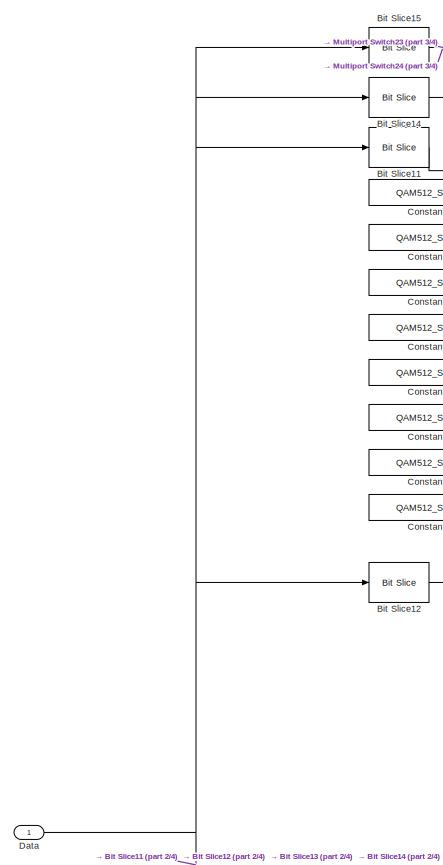
[diagram: Modulation/Signal Generator/Variable Modulator/QAM512 Generator - part 1/4, top left region]
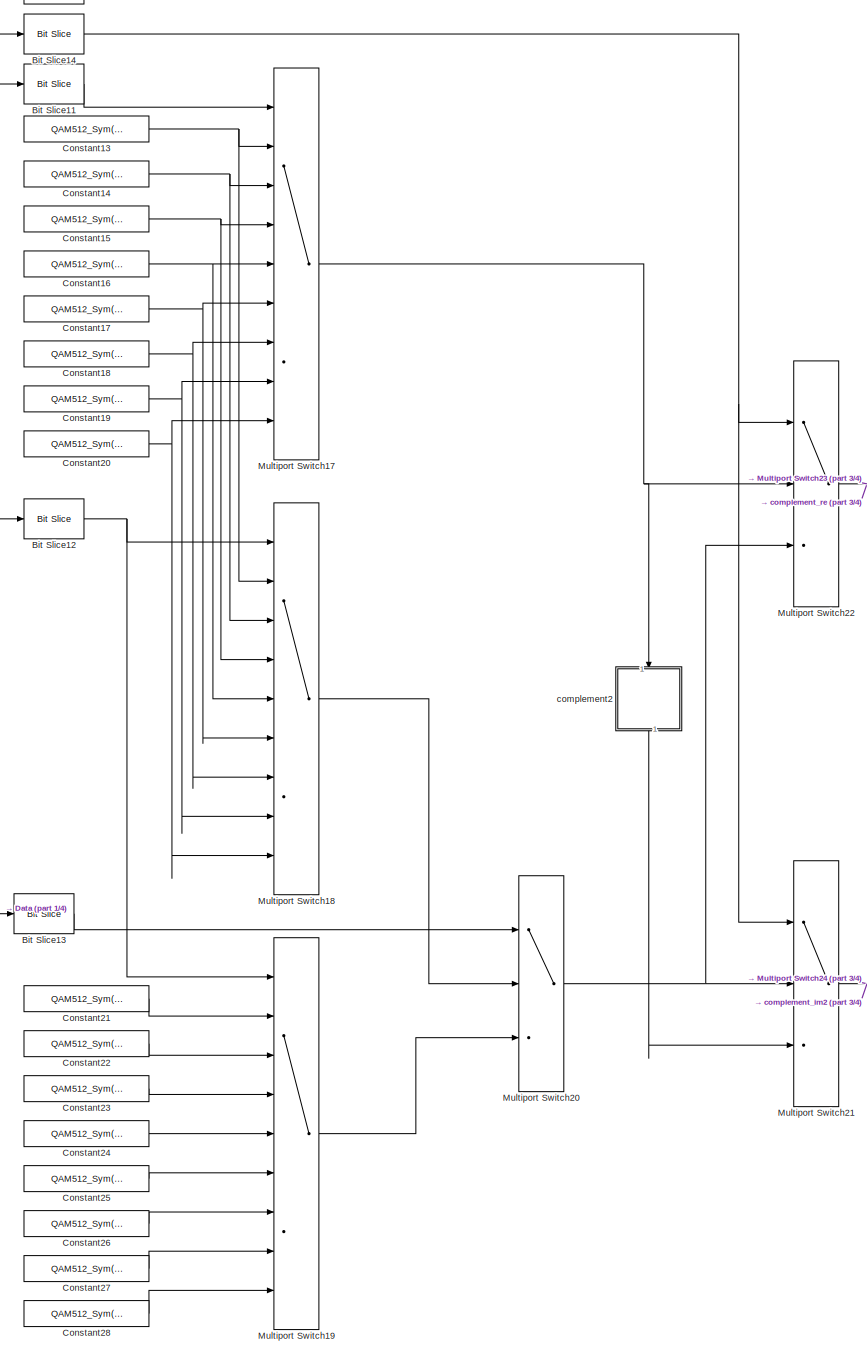
[diagram: Modulation/Signal Generator/Variable Modulator/QAM512 Generator - part 2/4, center side, full height]
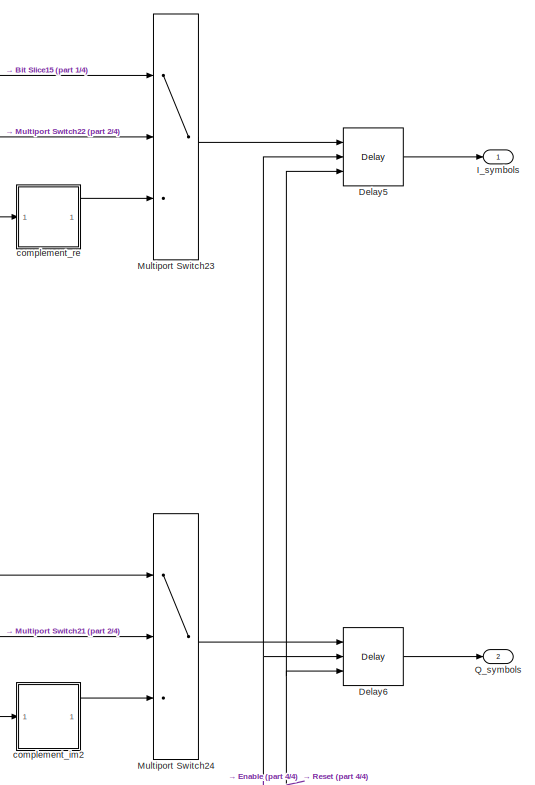
[diagram: Modulation/Signal Generator/Variable Modulator/QAM512 Generator - part 3/4, middle right region]
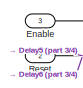
[diagram: Modulation/Signal Generator/Variable Modulator/QAM512 Generator - part 4/4, bottom left region]
BLOCK [SubSystem] Modulation/Signal Generator/Variable Modulator/QAM512 Generator
  Ports = [3, 2]
  RequestExecContextInheritance = off
BLOCK [Reference] Modulation/Signal Generator/Variable Modulator/QAM512 Generator/Bit Slice11  REF=hdlsllib/Logic and Bit
Operations/Bit Slice
  Ports = [1, 1]
  SourceBlock = hdlsllib/Logic and Bit\nOperations/Bit Slice
  SourceProductBaseCode = SL
  SourceType = Bit Slice
BLOCK [Reference] Modulation/Signal Generator/Variable Modulator/QAM512 Generator/Bit Slice12  REF=hdlsllib/Logic and Bit
Operations/Bit Slice
  Ports = [1, 1]
  SourceBlock = hdlsllib/Logic and Bit\nOperations/Bit Slice
  SourceProductBaseCode = SL
  SourceType = Bit Slice
BLOCK [Reference] Modulation/Signal Generator/Variable Modulator/QAM512 Generator/Bit Slice13  REF=hdlsllib/Logic and Bit
Operations/Bit Slice
  Ports = [1, 1]
  SourceBlock = hdlsllib/Logic and Bit\nOperations/Bit Slice
  SourceProductBaseCode = SL
  SourceType = Bit Slice
BLOCK [Reference] Modulation/Signal Generator/Variable Modulator/QAM512 Generator/Bit Slice14  REF=hdlsllib/Logic and Bit
Operations/Bit Slice
  Ports = [1, 1]
  SourceBlock = hdlsllib/Logic and Bit\nOperations/Bit Slice
  SourceProductBaseCode = SL
  SourceType = Bit Slice
BLOCK [Reference] Modulation/Signal Generator/Variable Modulator/QAM512 Generator/Bit Slice15  REF=hdlsllib/Logic and Bit
Operations/Bit Slice
  Ports = [1, 1]
  SourceBlock = hdlsllib/Logic and Bit\nOperations/Bit Slice
  SourceProductBaseCode = SL
  SourceType = Bit Slice
BLOCK [Constant] Modulation/Signal Generator/Variable Modulator/QAM512 Generator/Constant13
  OutDataTypeStr = fixdt(1,16,14)
  SampleTime = 1/fs
  Value = QAM512_Sym(length(QAM512_Sym) / 2 + 1)
BLOCK [Constant] Modulation/Signal Generator/Variable Modulator/QAM512 Generator/Constant14
  OutDataTypeStr = fixdt(1,16,14)
  SampleTime = 1/fs
  Value = QAM512_Sym(length(QAM512_Sym) / 2 + 2)
BLOCK [Constant] Modulation/Signal Generator/Variable Modulator/QAM512 Generator/Constant15
  OutDataTypeStr = fixdt(1,16,14)
  SampleTime = 1/fs
  Value = QAM512_Sym(length(QAM512_Sym) / 2 + 3)
BLOCK [Constant] Modulation/Signal Generator/Variable Modulator/QAM512 Generator/Constant16
  OutDataTypeStr = fixdt(1,16,14)
  SampleTime = 1/fs
  Value = QAM512_Sym(length(QAM512_Sym) / 2 + 4)
BLOCK [Constant] Modulation/Signal Generator/Variable Modulator/QAM512 Generator/Constant17
  OutDataTypeStr = fixdt(1,16,14)
  SampleTime = 1/fs
  Value = QAM512_Sym(length(QAM512_Sym) / 2 + 5)
BLOCK [Constant] Modulation/Signal Generator/Variable Modulator/QAM512 Generator/Constant18
  OutDataTypeStr = fixdt(1,16,14)
  SampleTime = 1/fs
  Value = QAM512_Sym(length(QAM512_Sym) / 2 + 6)
BLOCK [Constant] Modulation/Signal Generator/Variable Modulator/QAM512 Generator/Constant19
  OutDataTypeStr = fixdt(1,16,14)
  SampleTime = 1/fs
  Value = QAM512_Sym(length(QAM512_Sym) / 2 + 7)
BLOCK [Constant] Modulation/Signal Generator/Variable Modulator/QAM512 Generator/Constant20
  OutDataTypeStr = fixdt(1,16,14)
  SampleTime = 1/fs
  Value = QAM512_Sym(length(QAM512_Sym) / 2 + 8)
BLOCK [Constant] Modulation/Signal Generator/Variable Modulator/QAM512 Generator/Constant21
  OutDataTypeStr = fixdt(1,16,14)
  SampleTime = 1/fs
  Value = QAM512_Sym(length(QAM512_Sym))
BLOCK [Constant] Modulation/Signal Generator/Variable Modulator/QAM512 Generator/Constant22
  OutDataTypeStr = fixdt(1,16,14)
  SampleTime = 1/fs
  Value = QAM512_Sym(length(QAM512_Sym)-1)
BLOCK [Constant] Modulation/Signal Generator/Variable Modulator/QAM512 Generator/Constant23
  OutDataTypeStr = fixdt(1,16,14)
  SampleTime = 1/fs
  Value = QAM512_Sym(length(QAM512_Sym)-2)
BLOCK [Constant] Modulation/Signal Generator/Variable Modulator/QAM512 Generator/Constant24
  OutDataTypeStr = fixdt(1,16,14)
  SampleTime = 1/fs
  Value = QAM512_Sym(length(QAM512_Sym)-3)
BLOCK [Constant] Modulation/Signal Generator/Variable Modulator/QAM512 Generator/Constant25
  OutDataTypeStr = fixdt(1,16,14)
  SampleTime = 1/fs
  Value = QAM512_Sym(4)
BLOCK [Constant] Modulation/Signal Generator/Variable Modulator/QAM512 Generator/Constant26
  OutDataTypeStr = fixdt(1,16,14)
  SampleTime = 1/fs
  Value = QAM512_Sym(3)
BLOCK [Constant] Modulation/Signal Generator/Variable Modulator/QAM512 Generator/Constant27
  OutDataTypeStr = fixdt(1,16,14)
  SampleTime = 1/fs
  Value = QAM512_Sym(2)
BLOCK [Constant] Modulation/Signal Generator/Variable Modulator/QAM512 Generator/Constant28
  OutDataTypeStr = fixdt(1,16,14)
  SampleTime = 1/fs
  Value = QAM512_Sym(1)
BLOCK [Inport] Modulation/Signal Generator/Variable Modulator/QAM512 Generator/Data
BLOCK [Delay] Modulation/Signal Generator/Variable Modulator/QAM512 Generator/Delay5
  DelayLength = 1
  ExternalReset = Level
  InputPortMap = u0,e6,r5
  Ports = [3, 1]
  SampleTime = 1/fs
  ShowEnablePort = on
BLOCK [Delay] Modulation/Signal Generator/Variable Modulator/QAM512 Generator/Delay6
  DelayLength = 1
  ExternalReset = Level
  InputPortMap = u0,e6,r5
  Ports = [3, 1]
  SampleTime = 1/fs
  ShowEnablePort = on
BLOCK [Inport] Modulation/Signal Generator/Variable Modulator/QAM512 Generator/Enable
  Port = 3
BLOCK [Outport] Modulation/Signal Generator/Variable Modulator/QAM512 Generator/I_symbols
  VectorParamsAs1DForOutWhenUnconnected = off
BLOCK [MultiPortSwitch] Modulation/Signal Generator/Variable Modulator/QAM512 Generator/Multiport Switch17
  DataPortOrder = Zero-based contiguous
  InputSameDT = off
  Inputs = 8
  Ports = [9, 1]
  SaturateOnIntegerOverflow = off
  zeroidx = on
BLOCK [MultiPortSwitch] Modulation/Signal Generator/Variable Modulator/QAM512 Generator/Multiport Switch18
  DataPortOrder = Zero-based contiguous
  InputSameDT = off
  Inputs = 8
  Ports = [9, 1]
  SaturateOnIntegerOverflow = off
  zeroidx = on
BLOCK [MultiPortSwitch] Modulation/Signal Generator/Variable Modulator/QAM512 Generator/Multiport Switch19
  DataPortOrder = Zero-based contiguous
  InputSameDT = off
  Inputs = 8
  Ports = [9, 1]
  SaturateOnIntegerOverflow = off
  zeroidx = on
BLOCK [MultiPortSwitch] Modulation/Signal Generator/Variable Modulator/QAM512 Generator/Multiport Switch20
  DataPortOrder = Zero-based contiguous
  InputSameDT = off
  Inputs = 2
  Ports = [3, 1]
  SaturateOnIntegerOverflow = off
  zeroidx = on
BLOCK [MultiPortSwitch] Modulation/Signal Generator/Variable Modulator/QAM512 Generator/Multiport Switch21
  DataPortOrder = Zero-based contiguous
  InputSameDT = off
  Inputs = 2
  Ports = [3, 1]
  SaturateOnIntegerOverflow = off
  zeroidx = on
BLOCK [MultiPortSwitch] Modulation/Signal Generator/Variable Modulator/QAM512 Generator/Multiport Switch22
  DataPortOrder = Zero-based contiguous
  InputSameDT = off
  Inputs = 2
  Ports = [3, 1]
  SaturateOnIntegerOverflow = off
  zeroidx = on
BLOCK [MultiPortSwitch] Modulation/Signal Generator/Variable Modulator/QAM512 Generator/Multiport Switch23
  DataPortOrder = Zero-based contiguous
  InputSameDT = off
  Inputs = 2
  Ports = [3, 1]
  SaturateOnIntegerOverflow = off
  zeroidx = on
BLOCK [MultiPortSwitch] Modulation/Signal Generator/Variable Modulator/QAM512 Generator/Multiport Switch24
  DataPortOrder = Zero-based contiguous
  InputSameDT = off
  Inputs = 2
  Ports = [3, 1]
  SaturateOnIntegerOverflow = off
  zeroidx = on
BLOCK [Outport] Modulation/Signal Generator/Variable Modulator/QAM512 Generator/Q_symbols
  Port = 2
  VectorParamsAs1DForOutWhenUnconnected = off
BLOCK [Inport] Modulation/Signal Generator/Variable Modulator/QAM512 Generator/Reset
  Port = 2
BLOCK [SubSystem] Modulation/Signal Generator/Variable Modulator/QAM512 Generator/complement2
  NameLocation = left
  Ports = [1, 1]
  RequestExecContextInheritance = off
BLOCK [Sum] Modulation/Signal Generator/Variable Modulator/QAM512 Generator/complement2/Add
  IconShape = rectangular
  OutDataTypeStr = uint16
  Ports = [2, 1]
BLOCK [Reference] Modulation/Signal Generator/Variable Modulator/QAM512 Generator/complement2/Bitwise NOT  REF=simulink/Logic and Bit
Operations/Bitwise
Operator
  Ports = [1, 1]
  SourceBlock = simulink/Logic and Bit\nOperations/Bitwise\nOperator
  SourceProductBaseCode = SL
  SourceType = Bitwise Operator
BLOCK [Constant] Modulation/Signal Generator/Variable Modulator/QAM512 Generator/complement2/Constant1
  OutDataTypeStr = uint16
  SampleTime = 1/fs
BLOCK [DataTypeConversion] Modulation/Signal Generator/Variable Modulator/QAM512 Generator/complement2/Data Type Conversion
  ConvertRealWorld = Stored Integer (SI)
  OutDataTypeStr = uint16
  RndMeth = Floor
  SaturateOnIntegerOverflow = off
BLOCK [DataTypeConversion] Modulation/Signal Generator/Variable Modulator/QAM512 Generator/complement2/Data Type Conversion1
  ConvertRealWorld = Stored Integer (SI)
  OutDataTypeStr = fixdt(1,16,14)
  RndMeth = Floor
  SaturateOnIntegerOverflow = off
BLOCK [Inport] Modulation/Signal Generator/Variable Modulator/QAM512 Generator/complement2/d_in
BLOCK [Outport] Modulation/Signal Generator/Variable Modulator/QAM512 Generator/complement2/d_out
BLOCK [SubSystem] Modulation/Signal Generator/Variable Modulator/QAM512 Generator/complement_im2
  Ports = [1, 1]
  RequestExecContextInheritance = off
BLOCK [Sum] Modulation/Signal Generator/Variable Modulator/QAM512 Generator/complement_im2/Add
  IconShape = rectangular
  OutDataTypeStr = uint16
  Ports = [2, 1]
BLOCK [Reference] Modulation/Signal Generator/Variable Modulator/QAM512 Generator/complement_im2/Bitwise NOT  REF=simulink/Logic and Bit
Operations/Bitwise
Operator
  Ports = [1, 1]
  SourceBlock = simulink/Logic and Bit\nOperations/Bitwise\nOperator
  SourceProductBaseCode = SL
  SourceType = Bitwise Operator
BLOCK [Constant] Modulation/Signal Generator/Variable Modulator/QAM512 Generator/complement_im2/Constant1
  OutDataTypeStr = uint16
  SampleTime = 1/fs
BLOCK [DataTypeConversion] Modulation/Signal Generator/Variable Modulator/QAM512 Generator/complement_im2/Data Type Conversion
  ConvertRealWorld = Stored Integer (SI)
  OutDataTypeStr = uint16
  RndMeth = Floor
  SaturateOnIntegerOverflow = off
BLOCK [DataTypeConversion] Modulation/Signal Generator/Variable Modulator/QAM512 Generator/complement_im2/Data Type Conversion1
  ConvertRealWorld = Stored Integer (SI)
  OutDataTypeStr = fixdt(1,16,14)
  RndMeth = Floor
  SaturateOnIntegerOverflow = off
BLOCK [Inport] Modulation/Signal Generator/Variable Modulator/QAM512 Generator/complement_im2/d_in
BLOCK [Outport] Modulation/Signal Generator/Variable Modulator/QAM512 Generator/complement_im2/d_out
BLOCK [SubSystem] Modulation/Signal Generator/Variable Modulator/QAM512 Generator/complement_re
  Ports = [1, 1]
  RequestExecContextInheritance = off
BLOCK [Sum] Modulation/Signal Generator/Variable Modulator/QAM512 Generator/complement_re/Add
  IconShape = rectangular
  OutDataTypeStr = uint16
  Ports = [2, 1]
BLOCK [Reference] Modulation/Signal Generator/Variable Modulator/QAM512 Generator/complement_re/Bitwise NOT  REF=simulink/Logic and Bit
Operations/Bitwise
Operator
  Ports = [1, 1]
  SourceBlock = simulink/Logic and Bit\nOperations/Bitwise\nOperator
  SourceProductBaseCode = SL
  SourceType = Bitwise Operator
BLOCK [Constant] Modulation/Signal Generator/Variable Modulator/QAM512 Generator/complement_re/Constant1
  OutDataTypeStr = uint16
  SampleTime = 1/fs
BLOCK [DataTypeConversion] Modulation/Signal Generator/Variable Modulator/QAM512 Generator/complement_re/Data Type Conversion
  ConvertRealWorld = Stored Integer (SI)
  OutDataTypeStr = uint16
  RndMeth = Floor
  SaturateOnIntegerOverflow = off
BLOCK [DataTypeConversion] Modulation/Signal Generator/Variable Modulator/QAM512 Generator/complement_re/Data Type Conversion1
  ConvertRealWorld = Stored Integer (SI)
  OutDataTypeStr = fixdt(1,16,14)
  RndMeth = Floor
  SaturateOnIntegerOverflow = off
BLOCK [Inport] Modulation/Signal Generator/Variable Modulator/QAM512 Generator/complement_re/d_in
BLOCK [Outport] Modulation/Signal Generator/Variable Modulator/QAM512 Generator/complement_re/d_out
BLOCK [SubSystem] Modulation/Signal Generator/Variable Modulator/QAM64 Generator
  Ports = [3, 2]
  RequestExecContextInheritance = off
BLOCK [Reference] Modulation/Signal Generator/Variable Modulator/QAM64 Generator/Bit Slice1  REF=hdlsllib/Logic and Bit
Operations/Bit Slice
  Ports = [1, 1]
  SourceBlock = hdlsllib/Logic and Bit\nOperations/Bit Slice
  SourceProductBaseCode = SL
  SourceType = Bit Slice
BLOCK [Reference] Modulation/Signal Generator/Variable Modulator/QAM64 Generator/Bit Slice2  REF=hdlsllib/Logic and Bit
Operations/Bit Slice
  Ports = [1, 1]
  SourceBlock = hdlsllib/Logic and Bit\nOperations/Bit Slice
  SourceProductBaseCode = SL
  SourceType = Bit Slice
BLOCK [Reference] Modulation/Signal Generator/Variable Modulator/QAM64 Generator/Bit Slice3  REF=hdlsllib/Logic and Bit
Operations/Bit Slice
  Ports = [1, 1]
  SourceBlock = hdlsllib/Logic and Bit\nOperations/Bit Slice
  SourceProductBaseCode = SL
  SourceType = Bit Slice
BLOCK [Reference] Modulation/Signal Generator/Variable Modulator/QAM64 Generator/Bit Slice4  REF=hdlsllib/Logic and Bit
Operations/Bit Slice
  Ports = [1, 1]
  SourceBlock = hdlsllib/Logic and Bit\nOperations/Bit Slice
  SourceProductBaseCode = SL
  SourceType = Bit Slice
BLOCK [Constant] Modulation/Signal Generator/Variable Modulator/QAM64 Generator/Constant1
  OutDataTypeStr = fixdt(1,16,14)
  SampleTime = 1/fs
  Value = 1.05
BLOCK [Constant] Modulation/Signal Generator/Variable Modulator/QAM64 Generator/Constant2
  OutDataTypeStr = fixdt(1,16,14)
  SampleTime = 1/fs
  Value = 0.45
BLOCK [Constant] Modulation/Signal Generator/Variable Modulator/QAM64 Generator/Constant5
  OutDataTypeStr = fixdt(1,16,14)
  SampleTime = 1/fs
  Value = 0.75
BLOCK [Constant] Modulation/Signal Generator/Variable Modulator/QAM64 Generator/Constant6
  OutDataTypeStr = fixdt(1,16,14)
  SampleTime = 1/fs
  Value = 0.15
BLOCK [Inport] Modulation/Signal Generator/Variable Modulator/QAM64 Generator/Data
BLOCK [Delay] Modulation/Signal Generator/Variable Modulator/QAM64 Generator/Delay1
  DelayLength = 1
  ExternalReset = Level
  InputPortMap = u0,e6,r5
  Ports = [3, 1]
  SampleTime = 1/fs
  ShowEnablePort = on
BLOCK [Delay] Modulation/Signal Generator/Variable Modulator/QAM64 Generator/Delay2
  DelayLength = 1
  ExternalReset = Level
  InputPortMap = u0,e6,r5
  Ports = [3, 1]
  SampleTime = 1/fs
  ShowEnablePort = on
BLOCK [Inport] Modulation/Signal Generator/Variable Modulator/QAM64 Generator/Enable
  Port = 3
BLOCK [Outport] Modulation/Signal Generator/Variable Modulator/QAM64 Generator/I_symbols
  VectorParamsAs1DForOutWhenUnconnected = off
BLOCK [MultiPortSwitch] Modulation/Signal Generator/Variable Modulator/QAM64 Generator/Multiport Switch
  DataPortOrder = Zero-based contiguous
  InputSameDT = off
  Inputs = 4
  Ports = [5, 1]
  SaturateOnIntegerOverflow = off
  zeroidx = on
BLOCK [MultiPortSwitch] Modulation/Signal Generator/Variable Modulator/QAM64 Generator/Multiport Switch1
  DataPortOrder = Zero-based contiguous
  InputSameDT = off
  Inputs = 4
  Ports = [5, 1]
  SaturateOnIntegerOverflow = off
  zeroidx = on
BLOCK [MultiPortSwitch] Modulation/Signal Generator/Variable Modulator/QAM64 Generator/Multiport Switch2
  DataPortOrder = Zero-based contiguous
  InputSameDT = off
  Inputs = 2
  Ports = [3, 1]
  SaturateOnIntegerOverflow = off
  zeroidx = on
BLOCK [MultiPortSwitch] Modulation/Signal Generator/Variable Modulator/QAM64 Generator/Multiport Switch3
  DataPortOrder = Zero-based contiguous
  InputSameDT = off
  Inputs = 2
  Ports = [3, 1]
  SaturateOnIntegerOverflow = off
  zeroidx = on
BLOCK [Outport] Modulation/Signal Generator/Variable Modulator/QAM64 Generator/Q_symbols
  Port = 2
  VectorParamsAs1DForOutWhenUnconnected = off
BLOCK [Inport] Modulation/Signal Generator/Variable Modulator/QAM64 Generator/Reset
  Port = 2
BLOCK [SubSystem] Modulation/Signal Generator/Variable Modulator/QAM64 Generator/complement_im
  Ports = [1, 1]
  RequestExecContextInheritance = off
BLOCK [Sum] Modulation/Signal Generator/Variable Modulator/QAM64 Generator/complement_im/Add
  IconShape = rectangular
  OutDataTypeStr = uint16
  Ports = [2, 1]
BLOCK [Reference] Modulation/Signal Generator/Variable Modulator/QAM64 Generator/complement_im/Bitwise NOT  REF=simulink/Logic and Bit
Operations/Bitwise
Operator
  Ports = [1, 1]
  SourceBlock = simulink/Logic and Bit\nOperations/Bitwise\nOperator
  SourceProductBaseCode = SL
  SourceType = Bitwise Operator
BLOCK [Constant] Modulation/Signal Generator/Variable Modulator/QAM64 Generator/complement_im/Constant1
  OutDataTypeStr = uint16
  SampleTime = 1/fs
BLOCK [DataTypeConversion] Modulation/Signal Generator/Variable Modulator/QAM64 Generator/complement_im/Data Type Conversion
  ConvertRealWorld = Stored Integer (SI)
  OutDataTypeStr = uint16
  RndMeth = Floor
  SaturateOnIntegerOverflow = off
BLOCK [DataTypeConversion] Modulation/Signal Generator/Variable Modulator/QAM64 Generator/complement_im/Data Type Conversion1
  ConvertRealWorld = Stored Integer (SI)
  OutDataTypeStr = fixdt(1,16,14)
  RndMeth = Floor
  SaturateOnIntegerOverflow = off
BLOCK [Inport] Modulation/Signal Generator/Variable Modulator/QAM64 Generator/complement_im/d_in
BLOCK [Outport] Modulation/Signal Generator/Variable Modulator/QAM64 Generator/complement_im/d_out
BLOCK [SubSystem] Modulation/Signal Generator/Variable Modulator/QAM64 Generator/complement_re
  Ports = [1, 1]
  RequestExecContextInheritance = off
BLOCK [Sum] Modulation/Signal Generator/Variable Modulator/QAM64 Generator/complement_re/Add
  IconShape = rectangular
  OutDataTypeStr = uint16
  Ports = [2, 1]
BLOCK [Reference] Modulation/Signal Generator/Variable Modulator/QAM64 Generator/complement_re/Bitwise NOT  REF=simulink/Logic and Bit
Operations/Bitwise
Operator
  Ports = [1, 1]
  SourceBlock = simulink/Logic and Bit\nOperations/Bitwise\nOperator
  SourceProductBaseCode = SL
  SourceType = Bitwise Operator
BLOCK [Constant] Modulation/Signal Generator/Variable Modulator/QAM64 Generator/complement_re/Constant1
  OutDataTypeStr = uint16
  SampleTime = 1/fs
BLOCK [DataTypeConversion] Modulation/Signal Generator/Variable Modulator/QAM64 Generator/complement_re/Data Type Conversion
  ConvertRealWorld = Stored Integer (SI)
  OutDataTypeStr = uint16
  RndMeth = Floor
  SaturateOnIntegerOverflow = off
BLOCK [DataTypeConversion] Modulation/Signal Generator/Variable Modulator/QAM64 Generator/complement_re/Data Type Conversion1
  ConvertRealWorld = Stored Integer (SI)
  OutDataTypeStr = fixdt(1,16,14)
  RndMeth = Floor
  SaturateOnIntegerOverflow = off
BLOCK [Inport] Modulation/Signal Generator/Variable Modulator/QAM64 Generator/complement_re/d_in
BLOCK [Outport] Modulation/Signal Generator/Variable Modulator/QAM64 Generator/complement_re/d_out
BLOCK [SubSystem] Modulation/Signal Generator/Variable Modulator/QPSK Generator
  Ports = [3, 2]
  RequestExecContextInheritance = off
BLOCK [Constant] Modulation/Signal Generator/Variable Modulator/QPSK Generator/Constant1
  OutDataTypeStr = fixdt(1,16,14)
  SampleTime = 1/fs
  Value = -0.7071
BLOCK [Constant] Modulation/Signal Generator/Variable Modulator/QPSK Generator/Constant4
  OutDataTypeStr = fixdt(1,16,14)
  SampleTime = 1/fs
  Value = 0.7071
BLOCK [Inport] Modulation/Signal Generator/Variable Modulator/QPSK Generator/Data
BLOCK [Delay] Modulation/Signal Generator/Variable Modulator/QPSK Generator/Delay
  DelayLength = 1
  ExternalReset = Level
  InputPortMap = u0,e6,r5
  Ports = [3, 1]
  SampleTime = 1/fs
  ShowEnablePort = on
BLOCK [Delay] Modulation/Signal Generator/Variable Modulator/QPSK Generator/Delay1
  DelayLength = 1
  ExternalReset = Level
  InputPortMap = u0,e6,r5
  Ports = [3, 1]
  SampleTime = 1/fs
  ShowEnablePort = on
BLOCK [Inport] Modulation/Signal Generator/Variable Modulator/QPSK Generator/Enable
  Port = 3
BLOCK [Outport] Modulation/Signal Generator/Variable Modulator/QPSK Generator/I_symbols
  VectorParamsAs1DForOutWhenUnconnected = off
BLOCK [MultiPortSwitch] Modulation/Signal Generator/Variable Modulator/QPSK Generator/Multiport Switch
  DataPortOrder = Zero-based contiguous
  InputSameDT = off
  Inputs = 4
  Ports = [5, 1]
  SaturateOnIntegerOverflow = off
  zeroidx = on
BLOCK [MultiPortSwitch] Modulation/Signal Generator/Variable Modulator/QPSK Generator/Multiport Switch1
  DataPortOrder = Zero-based contiguous
  InputSameDT = off
  Inputs = 4
  Ports = [5, 1]
  SaturateOnIntegerOverflow = off
  zeroidx = on
BLOCK [Outport] Modulation/Signal Generator/Variable Modulator/QPSK Generator/Q_symbols
  Port = 2
  VectorParamsAs1DForOutWhenUnconnected = off
BLOCK [Inport] Modulation/Signal Generator/Variable Modulator/QPSK Generator/Reset
  Port = 2
BLOCK [Outport] Modulation/Signal Generator/Variable Modulator/Q_symbols
  VectorParamsAs1DForOutWhenUnconnected = off
BLOCK [Inport] Modulation/Signal Generator/Variable Modulator/Reset
  Port = 2
BLOCK [Inport] Modulation/Signal Generator/Variable Modulator/Select
BLOCK [Outport] Modulation/Signal Generator/im_tdata
  Port = 2
  VectorParamsAs1DForOutWhenUnconnected = off
BLOCK [Outport] Modulation/Signal Generator/m_axis_tvalid
  Port = 3
  VectorParamsAs1DForOutWhenUnconnected = off
BLOCK [Outport] Modulation/Signal Generator/re_tdata
  VectorParamsAs1DForOutWhenUnconnected = off
BLOCK [SubSystem] Modulation/Type Conv
  Ports = [2, 1]
  RequestExecContextInheritance = off
BLOCK [Reference] Modulation/Type Conv/Bit Concat  REF=hdlsllib/Logic and Bit
Operations/Bit Concat
  Ports = [2, 1]
  SourceBlock = hdlsllib/Logic and Bit\nOperations/Bit Concat
  SourceProductBaseCode = SL
  SourceType = Bit Concat
BLOCK [DataTypeConversion] Modulation/Type Conv/Data Type Conversion
  ConvertRealWorld = Stored Integer (SI)
  OutDataTypeStr = uint16
  RndMeth = Floor
  SaturateOnIntegerOverflow = off
BLOCK [DataTypeConversion] Modulation/Type Conv/Data Type Conversion1
  ConvertRealWorld = Stored Integer (SI)
  OutDataTypeStr = uint16
  RndMeth = Floor
  SaturateOnIntegerOverflow = off
BLOCK [Inport] Modulation/Type Conv/im_tdata
  Port = 2
BLOCK [Inport] Modulation/Type Conv/re_tdata
BLOCK [Outport] Modulation/Type Conv/tdata
BLOCK [Inport] Modulation/enable
  Port = 2
BLOCK [Inport] Modulation/modulation
BLOCK [Outport] Modulation/tdata
BLOCK [Outport] Modulation/valid
  Port = 2
BLOCK [Terminator] Terminator
BLOCK [Terminator] Terminator1
LINE Constant3:1 -> Modulation:2
LINE Constant4:1 -> Modulation:1
LINE Modulation/Constant1:1 -> Modulation/Signal Generator:2
LINE Modulation/Signal Generator/AND:1 -> Modulation/Signal Generator/m_axis_tvalid:1
LINE Modulation/Signal Generator/Delay:1 -> Modulation/Signal Generator/AND:2
NET Modulation/Signal Generator/Enable:1 -> Modulation/Signal Generator/AND:1, Modulation/Signal Generator/Delay:1, Modulation/Signal Generator/Random Generator:2, Modulation/Signal Generator/Variable Modulator:3
LINE Modulation/Signal Generator/Modulation:1 -> Modulation/Signal Generator/Variable Modulator:1
LINE Modulation/Signal Generator/Random Generator/Bit Concat1:1 -> Modulation/Signal Generator/Random Generator/Delay:1
LINE Modulation/Signal Generator/Random Generator/Delay:1 -> Modulation/Signal Generator/Random Generator/Data:1
NET Modulation/Signal Generator/Random Generator/Enable:1 -> Modulation/Signal Generator/Random Generator/Delay:2, Modulation/Signal Generator/Random Generator/LFRSs:enable
LINE Modulation/Signal Generator/Random Generator/LFRSs/PN Sequence Generator1:1 -> Modulation/Signal Generator/Random Generator/LFRSs/LFSR2:1
LINE Modulation/Signal Generator/Random Generator/LFRSs/PN Sequence Generator2:1 -> Modulation/Signal Generator/Random Generator/LFRSs/LFSR3:1
LINE Modulation/Signal Generator/Random Generator/LFRSs/PN Sequence Generator3:1 -> Modulation/Signal Generator/Random Generator/LFRSs/LFSR4:1
LINE Modulation/Signal Generator/Random Generator/LFRSs/PN Sequence Generator4:1 -> Modulation/Signal Generator/Random Generator/LFRSs/LFSR5:1
LINE Modulation/Signal Generator/Random Generator/LFRSs/PN Sequence Generator5:1 -> Modulation/Signal Generator/Random Generator/LFRSs/LFSR6:1
LINE Modulation/Signal Generator/Random Generator/LFRSs/PN Sequence Generator6:1 -> Modulation/Signal Generator/Random Generator/LFRSs/LFSR7:1
LINE Modulation/Signal Generator/Random Generator/LFRSs/PN Sequence Generator7:1 -> Modulation/Signal Generator/Random Generator/LFRSs/LFSR8:1
LINE Modulation/Signal Generator/Random Generator/LFRSs/PN Sequence Generator8:1 -> Modulation/Signal Generator/Random Generator/LFRSs/LFSR9:1
LINE Modulation/Signal Generator/Random Generator/LFRSs/PN Sequence Generator9:1 -> Modulation/Signal Generator/Random Generator/LFRSs/LFSR10:1
LINE Modulation/Signal Generator/Random Generator/LFRSs/PN Sequence Generator:1 -> Modulation/Signal Generator/Random Generator/LFRSs/LFSR1:1
NET Modulation/Signal Generator/Random Generator/LFRSs/Reset:1 -> Modulation/Signal Generator/Random Generator/LFRSs/PN Sequence Generator1:1, Modulation/Signal Generator/Random Generator/LFRSs/PN Sequence Generator2:1, Modulation/Signal Generator/Random Generator/LFRSs/PN Sequence Generator3:1, Modulation/Signal Generator/Random Generator/LFRSs/PN Sequence Generator4:1, Modulation/Signal Generator/Random Generator/LFRSs/PN Sequence Generator5:1, Modulation/Signal Generator/Random Generator/LFRSs/PN Sequence Generator6:1, Modulation/Signal Generator/Random Generator/LFRSs/PN Sequence Generator7:1, Modulation/Signal Generator/Random Generator/LFRSs/PN Sequence Generator8:1, Modulation/Signal Generator/Random Generator/LFRSs/PN Sequence Generator9:1, Modulation/Signal Generator/Random Generator/LFRSs/PN Sequence Generator:1
LINE Modulation/Signal Generator/Random Generator/LFRSs:1 -> Modulation/Signal Generator/Random Generator/Bit Concat1:1
LINE Modulation/Signal Generator/Random Generator/LFRSs:10 -> Modulation/Signal Generator/Random Generator/Bit Concat1:10
LINE Modulation/Signal Generator/Random Generator/LFRSs:2 -> Modulation/Signal Generator/Random Generator/Bit Concat1:2
LINE Modulation/Signal Generator/Random Generator/LFRSs:3 -> Modulation/Signal Generator/Random Generator/Bit Concat1:3
LINE Modulation/Signal Generator/Random Generator/LFRSs:4 -> Modulation/Signal Generator/Random Generator/Bit Concat1:4
LINE Modulation/Signal Generator/Random Generator/LFRSs:5 -> Modulation/Signal Generator/Random Generator/Bit Concat1:5
LINE Modulation/Signal Generator/Random Generator/LFRSs:6 -> Modulation/Signal Generator/Random Generator/Bit Concat1:6
LINE Modulation/Signal Generator/Random Generator/LFRSs:7 -> Modulation/Signal Generator/Random Generator/Bit Concat1:7
LINE Modulation/Signal Generator/Random Generator/LFRSs:8 -> Modulation/Signal Generator/Random Generator/Bit Concat1:8
LINE Modulation/Signal Generator/Random Generator/LFRSs:9 -> Modulation/Signal Generator/Random Generator/Bit Concat1:9
NET Modulation/Signal Generator/Random Generator/Reset:1 -> Modulation/Signal Generator/Random Generator/Delay:3, Modulation/Signal Generator/Random Generator/LFRSs:1
LINE Modulation/Signal Generator/Random Generator:1 -> Modulation/Signal Generator/Variable Modulator:4
NET Modulation/Signal Generator/Reset:1 -> Modulation/Signal Generator/Random Generator:1, Modulation/Signal Generator/Variable Modulator:2
NET Modulation/Signal Generator/Variable Modulator/8PSK Generator/Constant1:1 -> Modulation/Signal Generator/Variable Modulator/8PSK Generator/Multiport Switch1:3, Modulation/Signal Generator/Variable Modulator/8PSK Generator/Multiport Switch1:5, Modulation/Signal Generator/Variable Modulator/8PSK Generator/Multiport Switch:2, Modulation/Signal Generator/Variable Modulator/8PSK Generator/Multiport Switch:6
NET Modulation/Signal Generator/Variable Modulator/8PSK Generator/Constant2:1 -> Modulation/Signal Generator/Variable Modulator/8PSK Generator/Multiport Switch1:2, Modulation/Signal Generator/Variable Modulator/8PSK Generator/Multiport Switch1:4, Modulation/Signal Generator/Variable Modulator/8PSK Generator/Multiport Switch:3, Modulation/Signal Generator/Variable Modulator/8PSK Generator/Multiport Switch:7
NET Modulation/Signal Generator/Variable Modulator/8PSK Generator/Constant3:1 -> Modulation/Signal Generator/Variable Modulator/8PSK Generator/Multiport Switch1:7, Modulation/Signal Generator/Variable Modulator/8PSK Generator/Multiport Switch1:9, Modulation/Signal Generator/Variable Modulator/8PSK Generator/Multiport Switch:4, Modulation/Signal Generator/Variable Modulator/8PSK Generator/Multiport Switch:8
NET Modulation/Signal Generator/Variable Modulator/8PSK Generator/Constant4:1 -> Modulation/Signal Generator/Variable Modulator/8PSK Generator/Multiport Switch1:6, Modulation/Signal Generator/Variable Modulator/8PSK Generator/Multiport Switch1:8, Modulation/Signal Generator/Variable Modulator/8PSK Generator/Multiport Switch:5, Modulation/Signal Generator/Variable Modulator/8PSK Generator/Multiport Switch:9
NET Modulation/Signal Generator/Variable Modulator/8PSK Generator/Data:1 -> Modulation/Signal Generator/Variable Modulator/8PSK Generator/Multiport Switch1:1, Modulation/Signal Generator/Variable Modulator/8PSK Generator/Multiport Switch:1
LINE Modulation/Signal Generator/Variable Modulator/8PSK Generator/Delay1:1 -> Modulation/Signal Generator/Variable Modulator/8PSK Generator/Q_symbols:1
LINE Modulation/Signal Generator/Variable Modulator/8PSK Generator/Delay:1 -> Modulation/Signal Generator/Variable Modulator/8PSK Generator/I_symbols:1
NET Modulation/Signal Generator/Variable Modulator/8PSK Generator/Enable:1 -> Modulation/Signal Generator/Variable Modulator/8PSK Generator/Delay1:2, Modulation/Signal Generator/Variable Modulator/8PSK Generator/Delay:2
LINE Modulation/Signal Generator/Variable Modulator/8PSK Generator/Multiport Switch1:1 -> Modulation/Signal Generator/Variable Modulator/8PSK Generator/Delay1:1
LINE Modulation/Signal Generator/Variable Modulator/8PSK Generator/Multiport Switch:1 -> Modulation/Signal Generator/Variable Modulator/8PSK Generator/Delay:1
NET Modulation/Signal Generator/Variable Modulator/8PSK Generator/Reset:1 -> Modulation/Signal Generator/Variable Modulator/8PSK Generator/Delay1:3, Modulation/Signal Generator/Variable Modulator/8PSK Generator/Delay:3
LINE Modulation/Signal Generator/Variable Modulator/8PSK Generator:1 -> Modulation/Signal Generator/Variable Modulator/Multiport Switch:4
LINE Modulation/Signal Generator/Variable Modulator/8PSK Generator:2 -> Modulation/Signal Generator/Variable Modulator/Multiport Switch1:4
LINE Modulation/Signal Generator/Variable Modulator/BPSK Generator/Constant2:1 -> Modulation/Signal Generator/Variable Modulator/BPSK Generator/Multiport Switch:3
LINE Modulation/Signal Generator/Variable Modulator/BPSK Generator/Constant3:1 -> Modulation/Signal Generator/Variable Modulator/BPSK Generator/Multiport Switch:2
LINE Modulation/Signal Generator/Variable Modulator/BPSK Generator/Data:1 -> Modulation/Signal Generator/Variable Modulator/BPSK Generator/Multiport Switch:1
LINE Modulation/Signal Generator/Variable Modulator/BPSK Generator/Delay:1 -> Modulation/Signal Generator/Variable Modulator/BPSK Generator/I_symbols:1
LINE Modulation/Signal Generator/Variable Modulator/BPSK Generator/Enable:1 -> Modulation/Signal Generator/Variable Modulator/BPSK Generator/Delay:2
LINE Modulation/Signal Generator/Variable Modulator/BPSK Generator/Multiport Switch:1 -> Modulation/Signal Generator/Variable Modulator/BPSK Generator/Delay:1
LINE Modulation/Signal Generator/Variable Modulator/BPSK Generator/Reset:1 -> Modulation/Signal Generator/Variable Modulator/BPSK Generator/Delay:3
LINE Modulation/Signal Generator/Variable Modulator/BPSK Generator:1 -> Modulation/Signal Generator/Variable Modulator/Multiport Switch:2
LINE Modulation/Signal Generator/Variable Modulator/Bit Slice10:1 -> Modulation/Signal Generator/Variable Modulator/QAM1024 Generator:1
LINE Modulation/Signal Generator/Variable Modulator/Bit Slice1:1 -> Modulation/Signal Generator/Variable Modulator/QPSK Generator:1
LINE Modulation/Signal Generator/Variable Modulator/Bit Slice2:1 -> Modulation/Signal Generator/Variable Modulator/8PSK Generator:1
NET Modulation/Signal Generator/Variable Modulator/Bit Slice3:1 -> Modulation/Signal Generator/Variable Modulator/Multiport Switch1:1, Modulation/Signal Generator/Variable Modulator/Multiport Switch:1
LINE Modulation/Signal Generator/Variable Modulator/Bit Slice4:1 -> Modulation/Signal Generator/Variable Modulator/QAM16 Generator:1
LINE Modulation/Signal Generator/Variable Modulator/Bit Slice5:1 -> Modulation/Signal Generator/Variable Modulator/QAM64 Generator:1
LINE Modulation/Signal Generator/Variable Modulator/Bit Slice6:1 -> Modulation/Signal Generator/Variable Modulator/QAM32 Generator:1
LINE Modulation/Signal Generator/Variable Modulator/Bit Slice7:1 -> Modulation/Signal Generator/Variable Modulator/QAM256 Generator:1
LINE Modulation/Signal Generator/Variable Modulator/Bit Slice8:1 -> Modulation/Signal Generator/Variable Modulator/QAM128 Generator:1
LINE Modulation/Signal Generator/Variable Modulator/Bit Slice9:1 -> Modulation/Signal Generator/Variable Modulator/QAM512 Generator:1
LINE Modulation/Signal Generator/Variable Modulator/Bit Slice:1 -> Modulation/Signal Generator/Variable Modulator/BPSK Generator:1
LINE Modulation/Signal Generator/Variable Modulator/Constant1:1 -> Modulation/Signal Generator/Variable Modulator/Multiport Switch1:2
NET Modulation/Signal Generator/Variable Modulator/Data:1 -> Modulation/Signal Generator/Variable Modulator/Bit Slice10:1, Modulation/Signal Generator/Variable Modulator/Bit Slice1:1, Modulation/Signal Generator/Variable Modulator/Bit Slice2:1, Modulation/Signal Generator/Variable Modulator/Bit Slice4:1, Modulation/Signal Generator/Variable Modulator/Bit Slice5:1, Modulation/Signal Generator/Variable Modulator/Bit Slice6:1, Modulation/Signal Generator/Variable Modulator/Bit Slice7:1, Modulation/Signal Generator/Variable Modulator/Bit Slice8:1, Modulation/Signal Generator/Variable Modulator/Bit Slice9:1, Modulation/Signal Generator/Variable Modulator/Bit Slice:1
NET Modulation/Signal Generator/Variable Modulator/Enable:1 -> Modulation/Signal Generator/Variable Modulator/8PSK Generator:3, Modulation/Signal Generator/Variable Modulator/BPSK Generator:3, Modulation/Signal Generator/Variable Modulator/QAM1024 Generator:3, Modulation/Signal Generator/Variable Modulator/QAM128 Generator:3, Modulation/Signal Generator/Variable Modulator/QAM16 Generator:3, Modulation/Signal Generator/Variable Modulator/QAM256 Generator:3, Modulation/Signal Generator/Variable Modulator/QAM32 Generator:3, Modulation/Signal Generator/Variable Modulator/QAM512 Generator:3, Modulation/Signal Generator/Variable Modulator/QAM64 Generator:3, Modulation/Signal Generator/Variable Modulator/QPSK Generator:3
LINE Modulation/Signal Generator/Variable Modulator/Multiport Switch1:1 -> Modulation/Signal Generator/Variable Modulator/Q_symbols:1
LINE Modulation/Signal Generator/Variable Modulator/Multiport Switch:1 -> Modulation/Signal Generator/Variable Modulator/I_symbols:1
LINE Modulation/Signal Generator/Variable Modulator/QAM1024 Generator/Bit Slice5:1 -> Modulation/Signal Generator/Variable Modulator/QAM1024 Generator/Multiport Switch4:1
LINE Modulation/Signal Generator/Variable Modulator/QAM1024 Generator/Bit Slice6:1 -> Modulation/Signal Generator/Variable Modulator/QAM1024 Generator/Multiport Switch5:1
LINE Modulation/Signal Generator/Variable Modulator/QAM1024 Generator/Bit Slice7:1 -> Modulation/Signal Generator/Variable Modulator/QAM1024 Generator/Multiport Switch7:1
LINE Modulation/Signal Generator/Variable Modulator/QAM1024 Generator/Bit Slice8:1 -> Modulation/Signal Generator/Variable Modulator/QAM1024 Generator/Multiport Switch6:1
NET Modulation/Signal Generator/Variable Modulator/QAM1024 Generator/Constant10:1 -> Modulation/Signal Generator/Variable Modulator/QAM1024 Generator/Multiport Switch4:3, Modulation/Signal Generator/Variable Modulator/QAM1024 Generator/Multiport Switch5:3
NET Modulation/Signal Generator/Variable Modulator/QAM1024 Generator/Constant11:1 -> Modulation/Signal Generator/Variable Modulator/QAM1024 Generator/Multiport Switch4:4, Modulation/Signal Generator/Variable Modulator/QAM1024 Generator/Multiport Switch5:4
NET Modulation/Signal Generator/Variable Modulator/QAM1024 Generator/Constant12:1 -> Modulation/Signal Generator/Variable Modulator/QAM1024 Generator/Multiport Switch4:5, Modulation/Signal Generator/Variable Modulator/QAM1024 Generator/Multiport Switch5:5
NET Modulation/Signal Generator/Variable Modulator/QAM1024 Generator/Constant13:1 -> Modulation/Signal Generator/Variable Modulator/QAM1024 Generator/Multiport Switch4:6, Modulation/Signal Generator/Variable Modulator/QAM1024 Generator/Multiport Switch5:6
NET Modulation/Signal Generator/Variable Modulator/QAM1024 Generator/Constant14:1 -> Modulation/Signal Generator/Variable Modulator/QAM1024 Generator/Multiport Switch4:7, Modulation/Signal Generator/Variable Modulator/QAM1024 Generator/Multiport Switch5:7
NET Modulation/Signal Generator/Variable Modulator/QAM1024 Generator/Constant15:1 -> Modulation/Signal Generator/Variable Modulator/QAM1024 Generator/Multiport Switch4:8, Modulation/Signal Generator/Variable Modulator/QAM1024 Generator/Multiport Switch5:8
NET Modulation/Signal Generator/Variable Modulator/QAM1024 Generator/Constant16:1 -> Modulation/Signal Generator/Variable Modulator/QAM1024 Generator/Multiport Switch4:9, Modulation/Signal Generator/Variable Modulator/QAM1024 Generator/Multiport Switch5:9
NET Modulation/Signal Generator/Variable Modulator/QAM1024 Generator/Constant17:1 -> Modulation/Signal Generator/Variable Modulator/QAM1024 Generator/Multiport Switch4:11, Modulation/Signal Generator/Variable Modulator/QAM1024 Generator/Multiport Switch5:11
NET Modulation/Signal Generator/Variable Modulator/QAM1024 Generator/Constant18:1 -> Modulation/Signal Generator/Variable Modulator/QAM1024 Generator/Multiport Switch4:12, Modulation/Signal Generator/Variable Modulator/QAM1024 Generator/Multiport Switch5:12
NET Modulation/Signal Generator/Variable Modulator/QAM1024 Generator/Constant19:1 -> Modulation/Signal Generator/Variable Modulator/QAM1024 Generator/Multiport Switch4:13, Modulation/Signal Generator/Variable Modulator/QAM1024 Generator/Multiport Switch5:13
NET Modulation/Signal Generator/Variable Modulator/QAM1024 Generator/Constant20:1 -> Modulation/Signal Generator/Variable Modulator/QAM1024 Generator/Multiport Switch4:14, Modulation/Signal Generator/Variable Modulator/QAM1024 Generator/Multiport Switch5:14
NET Modulation/Signal Generator/Variable Modulator/QAM1024 Generator/Constant21:1 -> Modulation/Signal Generator/Variable Modulator/QAM1024 Generator/Multiport Switch4:15, Modulation/Signal Generator/Variable Modulator/QAM1024 Generator/Multiport Switch5:15
NET Modulation/Signal Generator/Variable Modulator/QAM1024 Generator/Constant22:1 -> Modulation/Signal Generator/Variable Modulator/QAM1024 Generator/Multiport Switch4:16, Modulation/Signal Generator/Variable Modulator/QAM1024 Generator/Multiport Switch5:16
NET Modulation/Signal Generator/Variable Modulator/QAM1024 Generator/Constant23:1 -> Modulation/Signal Generator/Variable Modulator/QAM1024 Generator/Multiport Switch4:17, Modulation/Signal Generator/Variable Modulator/QAM1024 Generator/Multiport Switch5:17
NET Modulation/Signal Generator/Variable Modulator/QAM1024 Generator/Constant24:1 -> Modulation/Signal Generator/Variable Modulator/QAM1024 Generator/Multiport Switch4:10, Modulation/Signal Generator/Variable Modulator/QAM1024 Generator/Multiport Switch5:10
NET Modulation/Signal Generator/Variable Modulator/QAM1024 Generator/Constant9:1 -> Modulation/Signal Generator/Variable Modulator/QAM1024 Generator/Multiport Switch4:2, Modulation/Signal Generator/Variable Modulator/QAM1024 Generator/Multiport Switch5:2
NET Modulation/Signal Generator/Variable Modulator/QAM1024 Generator/Data:1 -> Modulation/Signal Generator/Variable Modulator/QAM1024 Generator/Bit Slice5:1, Modulation/Signal Generator/Variable Modulator/QAM1024 Generator/Bit Slice6:1, Modulation/Signal Generator/Variable Modulator/QAM1024 Generator/Bit Slice7:1, Modulation/Signal Generator/Variable Modulator/QAM1024 Generator/Bit Slice8:1
LINE Modulation/Signal Generator/Variable Modulator/QAM1024 Generator/Delay3:1 -> Modulation/Signal Generator/Variable Modulator/QAM1024 Generator/I_symbols:1
LINE Modulation/Signal Generator/Variable Modulator/QAM1024 Generator/Delay4:1 -> Modulation/Signal Generator/Variable Modulator/QAM1024 Generator/Q_symbols:1
NET Modulation/Signal Generator/Variable Modulator/QAM1024 Generator/Enable:1 -> Modulation/Signal Generator/Variable Modulator/QAM1024 Generator/Delay3:2, Modulation/Signal Generator/Variable Modulator/QAM1024 Generator/Delay4:2
NET Modulation/Signal Generator/Variable Modulator/QAM1024 Generator/Multiport Switch4:1 -> Modulation/Signal Generator/Variable Modulator/QAM1024 Generator/Multiport Switch7:2, Modulation/Signal Generator/Variable Modulator/QAM1024 Generator/complement_re1:1
NET Modulation/Signal Generator/Variable Modulator/QAM1024 Generator/Multiport Switch5:1 -> Modulation/Signal Generator/Variable Modulator/QAM1024 Generator/Multiport Switch6:2, Modulation/Signal Generator/Variable Modulator/QAM1024 Generator/complement_im1:1
LINE Modulation/Signal Generator/Variable Modulator/QAM1024 Generator/Multiport Switch6:1 -> Modulation/Signal Generator/Variable Modulator/QAM1024 Generator/Delay4:1
LINE Modulation/Signal Generator/Variable Modulator/QAM1024 Generator/Multiport Switch7:1 -> Modulation/Signal Generator/Variable Modulator/QAM1024 Generator/Delay3:1
NET Modulation/Signal Generator/Variable Modulator/QAM1024 Generator/Reset:1 -> Modulation/Signal Generator/Variable Modulator/QAM1024 Generator/Delay3:3, Modulation/Signal Generator/Variable Modulator/QAM1024 Generator/Delay4:3
LINE Modulation/Signal Generator/Variable Modulator/QAM1024 Generator/complement_im1/Add:1 -> Modulation/Signal Generator/Variable Modulator/QAM1024 Generator/complement_im1/Data Type Conversion1:1
LINE Modulation/Signal Generator/Variable Modulator/QAM1024 Generator/complement_im1/Bitwise NOT:1 -> Modulation/Signal Generator/Variable Modulator/QAM1024 Generator/complement_im1/Add:1
LINE Modulation/Signal Generator/Variable Modulator/QAM1024 Generator/complement_im1/Constant1:1 -> Modulation/Signal Generator/Variable Modulator/QAM1024 Generator/complement_im1/Add:2
LINE Modulation/Signal Generator/Variable Modulator/QAM1024 Generator/complement_im1/Data Type Conversion1:1 -> Modulation/Signal Generator/Variable Modulator/QAM1024 Generator/complement_im1/d_out:1
LINE Modulation/Signal Generator/Variable Modulator/QAM1024 Generator/complement_im1/Data Type Conversion:1 -> Modulation/Signal Generator/Variable Modulator/QAM1024 Generator/complement_im1/Bitwise NOT:1
LINE Modulation/Signal Generator/Variable Modulator/QAM1024 Generator/complement_im1/d_in:1 -> Modulation/Signal Generator/Variable Modulator/QAM1024 Generator/complement_im1/Data Type Conversion:1
LINE Modulation/Signal Generator/Variable Modulator/QAM1024 Generator/complement_im1:1 -> Modulation/Signal Generator/Variable Modulator/QAM1024 Generator/Multiport Switch6:3
LINE Modulation/Signal Generator/Variable Modulator/QAM1024 Generator/complement_re1/Add:1 -> Modulation/Signal Generator/Variable Modulator/QAM1024 Generator/complement_re1/Data Type Conversion1:1
LINE Modulation/Signal Generator/Variable Modulator/QAM1024 Generator/complement_re1/Bitwise NOT:1 -> Modulation/Signal Generator/Variable Modulator/QAM1024 Generator/complement_re1/Add:1
LINE Modulation/Signal Generator/Variable Modulator/QAM1024 Generator/complement_re1/Constant1:1 -> Modulation/Signal Generator/Variable Modulator/QAM1024 Generator/complement_re1/Add:2
LINE Modulation/Signal Generator/Variable Modulator/QAM1024 Generator/complement_re1/Data Type Conversion1:1 -> Modulation/Signal Generator/Variable Modulator/QAM1024 Generator/complement_re1/d_out:1
LINE Modulation/Signal Generator/Variable Modulator/QAM1024 Generator/complement_re1/Data Type Conversion:1 -> Modulation/Signal Generator/Variable Modulator/QAM1024 Generator/complement_re1/Bitwise NOT:1
LINE Modulation/Signal Generator/Variable Modulator/QAM1024 Generator/complement_re1/d_in:1 -> Modulation/Signal Generator/Variable Modulator/QAM1024 Generator/complement_re1/Data Type Conversion:1
LINE Modulation/Signal Generator/Variable Modulator/QAM1024 Generator/complement_re1:1 -> Modulation/Signal Generator/Variable Modulator/QAM1024 Generator/Multiport Switch7:3
LINE Modulation/Signal Generator/Variable Modulator/QAM1024 Generator:1 -> Modulation/Signal Generator/Variable Modulator/Multiport Switch:11
LINE Modulation/Signal Generator/Variable Modulator/QAM1024 Generator:2 -> Modulation/Signal Generator/Variable Modulator/Multiport Switch1:11
NET Modulation/Signal Generator/Variable Modulator/QAM128 Generator/Bit Slice1:1 -> Modulation/Signal Generator/Variable Modulator/QAM128 Generator/Multiport Switch5:1, Modulation/Signal Generator/Variable Modulator/QAM128 Generator/Multiport Switch6:1
NET Modulation/Signal Generator/Variable Modulator/QAM128 Generator/Bit Slice2:1 -> Modulation/Signal Generator/Variable Modulator/QAM128 Generator/Multiport Switch1:1, Modulation/Signal Generator/Variable Modulator/QAM128 Generator/Multiport Switch4:1
LINE Modulation/Signal Generator/Variable Modulator/QAM128 Generator/Bit Slice3:1 -> Modulation/Signal Generator/Variable Modulator/QAM128 Generator/Multiport Switch2:1
NET Modulation/Signal Generator/Variable Modulator/QAM128 Generator/Bit Slice4:1 -> Modulation/Signal Generator/Variable Modulator/QAM128 Generator/Multiport Switch7:1, Modulation/Signal Generator/Variable Modulator/QAM128 Generator/Multiport Switch8:1
LINE Modulation/Signal Generator/Variable Modulator/QAM128 Generator/Bit Slice6:1 -> Modulation/Signal Generator/Variable Modulator/QAM128 Generator/Multiport Switch3:1
NET Modulation/Signal Generator/Variable Modulator/QAM128 Generator/Constant1:1 -> Modulation/Signal Generator/Variable Modulator/QAM128 Generator/Multiport Switch2:4, Modulation/Signal Generator/Variable Modulator/QAM128 Generator/Multiport Switch4:4
LINE Modulation/Signal Generator/Variable Modulator/QAM128 Generator/Constant2:1 -> Modulation/Signal Generator/Variable Modulator/QAM128 Generator/Multiport Switch1:2
NET Modulation/Signal Generator/Variable Modulator/QAM128 Generator/Constant3:1 -> Modulation/Signal Generator/Variable Modulator/QAM128 Generator/Multiport Switch2:2, Modulation/Signal Generator/Variable Modulator/QAM128 Generator/Multiport Switch4:2
LINE Modulation/Signal Generator/Variable Modulator/QAM128 Generator/Constant4:1 -> Modulation/Signal Generator/Variable Modulator/QAM128 Generator/Multiport Switch1:3
NET Modulation/Signal Generator/Variable Modulator/QAM128 Generator/Constant5:1 -> Modulation/Signal Generator/Variable Modulator/QAM128 Generator/Multiport Switch2:5, Modulation/Signal Generator/Variable Modulator/QAM128 Generator/Multiport Switch4:5
NET Modulation/Signal Generator/Variable Modulator/QAM128 Generator/Constant6:1 -> Modulation/Signal Generator/Variable Modulator/QAM128 Generator/Multiport Switch2:3, Modulation/Signal Generator/Variable Modulator/QAM128 Generator/Multiport Switch4:3
LINE Modulation/Signal Generator/Variable Modulator/QAM128 Generator/Constant7:1 -> Modulation/Signal Generator/Variable Modulator/QAM128 Generator/Multiport Switch1:4
LINE Modulation/Signal Generator/Variable Modulator/QAM128 Generator/Constant8:1 -> Modulation/Signal Generator/Variable Modulator/QAM128 Generator/Multiport Switch1:5
NET Modulation/Signal Generator/Variable Modulator/QAM128 Generator/Data:1 -> Modulation/Signal Generator/Variable Modulator/QAM128 Generator/Bit Slice1:1, Modulation/Signal Generator/Variable Modulator/QAM128 Generator/Bit Slice2:1, Modulation/Signal Generator/Variable Modulator/QAM128 Generator/Bit Slice3:1, Modulation/Signal Generator/Variable Modulator/QAM128 Generator/Bit Slice4:1, Modulation/Signal Generator/Variable Modulator/QAM128 Generator/Bit Slice6:1
LINE Modulation/Signal Generator/Variable Modulator/QAM128 Generator/Delay1:1 -> Modulation/Signal Generator/Variable Modulator/QAM128 Generator/I_symbols:1
LINE Modulation/Signal Generator/Variable Modulator/QAM128 Generator/Delay2:1 -> Modulation/Signal Generator/Variable Modulator/QAM128 Generator/Q_symbols:1
NET Modulation/Signal Generator/Variable Modulator/QAM128 Generator/Enable:1 -> Modulation/Signal Generator/Variable Modulator/QAM128 Generator/Delay1:2, Modulation/Signal Generator/Variable Modulator/QAM128 Generator/Delay2:2
LINE Modulation/Signal Generator/Variable Modulator/QAM128 Generator/Multiport Switch1:1 -> Modulation/Signal Generator/Variable Modulator/QAM128 Generator/Multiport Switch3:3
NET Modulation/Signal Generator/Variable Modulator/QAM128 Generator/Multiport Switch2:1 -> Modulation/Signal Generator/Variable Modulator/QAM128 Generator/Multiport Switch6:2, Modulation/Signal Generator/Variable Modulator/QAM128 Generator/complement:1
NET Modulation/Signal Generator/Variable Modulator/QAM128 Generator/Multiport Switch3:1 -> Modulation/Signal Generator/Variable Modulator/QAM128 Generator/Multiport Switch5:2, Modulation/Signal Generator/Variable Modulator/QAM128 Generator/Multiport Switch6:3
LINE Modulation/Signal Generator/Variable Modulator/QAM128 Generator/Multiport Switch4:1 -> Modulation/Signal Generator/Variable Modulator/QAM128 Generator/Multiport Switch3:2
NET Modulation/Signal Generator/Variable Modulator/QAM128 Generator/Multiport Switch5:1 -> Modulation/Signal Generator/Variable Modulator/QAM128 Generator/Multiport Switch8:2, Modulation/Signal Generator/Variable Modulator/QAM128 Generator/complement_im:1
NET Modulation/Signal Generator/Variable Modulator/QAM128 Generator/Multiport Switch6:1 -> Modulation/Signal Generator/Variable Modulator/QAM128 Generator/Multiport Switch7:2, Modulation/Signal Generator/Variable Modulator/QAM128 Generator/complement_re:1
LINE Modulation/Signal Generator/Variable Modulator/QAM128 Generator/Multiport Switch7:1 -> Modulation/Signal Generator/Variable Modulator/QAM128 Generator/Delay1:1
LINE Modulation/Signal Generator/Variable Modulator/QAM128 Generator/Multiport Switch8:1 -> Modulation/Signal Generator/Variable Modulator/QAM128 Generator/Delay2:1
NET Modulation/Signal Generator/Variable Modulator/QAM128 Generator/Reset:1 -> Modulation/Signal Generator/Variable Modulator/QAM128 Generator/Delay1:3, Modulation/Signal Generator/Variable Modulator/QAM128 Generator/Delay2:3
LINE Modulation/Signal Generator/Variable Modulator/QAM128 Generator/complement/Add:1 -> Modulation/Signal Generator/Variable Modulator/QAM128 Generator/complement/Data Type Conversion1:1
LINE Modulation/Signal Generator/Variable Modulator/QAM128 Generator/complement/Bitwise NOT:1 -> Modulation/Signal Generator/Variable Modulator/QAM128 Generator/complement/Add:1
LINE Modulation/Signal Generator/Variable Modulator/QAM128 Generator/complement/Constant1:1 -> Modulation/Signal Generator/Variable Modulator/QAM128 Generator/complement/Add:2
LINE Modulation/Signal Generator/Variable Modulator/QAM128 Generator/complement/Data Type Conversion1:1 -> Modulation/Signal Generator/Variable Modulator/QAM128 Generator/complement/d_out:1
LINE Modulation/Signal Generator/Variable Modulator/QAM128 Generator/complement/Data Type Conversion:1 -> Modulation/Signal Generator/Variable Modulator/QAM128 Generator/complement/Bitwise NOT:1
LINE Modulation/Signal Generator/Variable Modulator/QAM128 Generator/complement/d_in:1 -> Modulation/Signal Generator/Variable Modulator/QAM128 Generator/complement/Data Type Conversion:1
LINE Modulation/Signal Generator/Variable Modulator/QAM128 Generator/complement:1 -> Modulation/Signal Generator/Variable Modulator/QAM128 Generator/Multiport Switch5:3
LINE Modulation/Signal Generator/Variable Modulator/QAM128 Generator/complement_im/Add:1 -> Modulation/Signal Generator/Variable Modulator/QAM128 Generator/complement_im/Data Type Conversion1:1
LINE Modulation/Signal Generator/Variable Modulator/QAM128 Generator/complement_im/Bitwise NOT:1 -> Modulation/Signal Generator/Variable Modulator/QAM128 Generator/complement_im/Add:1
LINE Modulation/Signal Generator/Variable Modulator/QAM128 Generator/complement_im/Constant1:1 -> Modulation/Signal Generator/Variable Modulator/QAM128 Generator/complement_im/Add:2
LINE Modulation/Signal Generator/Variable Modulator/QAM128 Generator/complement_im/Data Type Conversion1:1 -> Modulation/Signal Generator/Variable Modulator/QAM128 Generator/complement_im/d_out:1
LINE Modulation/Signal Generator/Variable Modulator/QAM128 Generator/complement_im/Data Type Conversion:1 -> Modulation/Signal Generator/Variable Modulator/QAM128 Generator/complement_im/Bitwise NOT:1
LINE Modulation/Signal Generator/Variable Modulator/QAM128 Generator/complement_im/d_in:1 -> Modulation/Signal Generator/Variable Modulator/QAM128 Generator/complement_im/Data Type Conversion:1
LINE Modulation/Signal Generator/Variable Modulator/QAM128 Generator/complement_im:1 -> Modulation/Signal Generator/Variable Modulator/QAM128 Generator/Multiport Switch8:3
LINE Modulation/Signal Generator/Variable Modulator/QAM128 Generator/complement_re/Add:1 -> Modulation/Signal Generator/Variable Modulator/QAM128 Generator/complement_re/Data Type Conversion1:1
LINE Modulation/Signal Generator/Variable Modulator/QAM128 Generator/complement_re/Bitwise NOT:1 -> Modulation/Signal Generator/Variable Modulator/QAM128 Generator/complement_re/Add:1
LINE Modulation/Signal Generator/Variable Modulator/QAM128 Generator/complement_re/Constant1:1 -> Modulation/Signal Generator/Variable Modulator/QAM128 Generator/complement_re/Add:2
LINE Modulation/Signal Generator/Variable Modulator/QAM128 Generator/complement_re/Data Type Conversion1:1 -> Modulation/Signal Generator/Variable Modulator/QAM128 Generator/complement_re/d_out:1
LINE Modulation/Signal Generator/Variable Modulator/QAM128 Generator/complement_re/Data Type Conversion:1 -> Modulation/Signal Generator/Variable Modulator/QAM128 Generator/complement_re/Bitwise NOT:1
LINE Modulation/Signal Generator/Variable Modulator/QAM128 Generator/complement_re/d_in:1 -> Modulation/Signal Generator/Variable Modulator/QAM128 Generator/complement_re/Data Type Conversion:1
LINE Modulation/Signal Generator/Variable Modulator/QAM128 Generator/complement_re:1 -> Modulation/Signal Generator/Variable Modulator/QAM128 Generator/Multiport Switch7:3
LINE Modulation/Signal Generator/Variable Modulator/QAM128 Generator:1 -> Modulation/Signal Generator/Variable Modulator/Multiport Switch:8
LINE Modulation/Signal Generator/Variable Modulator/QAM128 Generator:2 -> Modulation/Signal Generator/Variable Modulator/Multiport Switch1:8
LINE Modulation/Signal Generator/Variable Modulator/QAM16 Generator/Bit Slice1:1 -> Modulation/Signal Generator/Variable Modulator/QAM16 Generator/Multiport Switch1:1
LINE Modulation/Signal Generator/Variable Modulator/QAM16 Generator/Bit Slice2:1 -> Modulation/Signal Generator/Variable Modulator/QAM16 Generator/Multiport Switch:1
NET Modulation/Signal Generator/Variable Modulator/QAM16 Generator/Constant1:1 -> Modulation/Signal Generator/Variable Modulator/QAM16 Generator/Multiport Switch1:2, Modulation/Signal Generator/Variable Modulator/QAM16 Generator/Multiport Switch:2
NET Modulation/Signal Generator/Variable Modulator/QAM16 Generator/Constant2:1 -> Modulation/Signal Generator/Variable Modulator/QAM16 Generator/Multiport Switch1:3, Modulation/Signal Generator/Variable Modulator/QAM16 Generator/Multiport Switch:3
NET Modulation/Signal Generator/Variable Modulator/QAM16 Generator/Constant3:1 -> Modulation/Signal Generator/Variable Modulator/QAM16 Generator/Multiport Switch1:4, Modulation/Signal Generator/Variable Modulator/QAM16 Generator/Multiport Switch:4
NET Modulation/Signal Generator/Variable Modulator/QAM16 Generator/Constant4:1 -> Modulation/Signal Generator/Variable Modulator/QAM16 Generator/Multiport Switch1:5, Modulation/Signal Generator/Variable Modulator/QAM16 Generator/Multiport Switch:5
NET Modulation/Signal Generator/Variable Modulator/QAM16 Generator/Data:1 -> Modulation/Signal Generator/Variable Modulator/QAM16 Generator/Bit Slice1:1, Modulation/Signal Generator/Variable Modulator/QAM16 Generator/Bit Slice2:1
LINE Modulation/Signal Generator/Variable Modulator/QAM16 Generator/Delay1:1 -> Modulation/Signal Generator/Variable Modulator/QAM16 Generator/I_symbols:1
LINE Modulation/Signal Generator/Variable Modulator/QAM16 Generator/Delay2:1 -> Modulation/Signal Generator/Variable Modulator/QAM16 Generator/Q_symbols:1
NET Modulation/Signal Generator/Variable Modulator/QAM16 Generator/Enable:1 -> Modulation/Signal Generator/Variable Modulator/QAM16 Generator/Delay1:2, Modulation/Signal Generator/Variable Modulator/QAM16 Generator/Delay2:2
LINE Modulation/Signal Generator/Variable Modulator/QAM16 Generator/Multiport Switch1:1 -> Modulation/Signal Generator/Variable Modulator/QAM16 Generator/Delay2:1
LINE Modulation/Signal Generator/Variable Modulator/QAM16 Generator/Multiport Switch:1 -> Modulation/Signal Generator/Variable Modulator/QAM16 Generator/Delay1:1
NET Modulation/Signal Generator/Variable Modulator/QAM16 Generator/Reset:1 -> Modulation/Signal Generator/Variable Modulator/QAM16 Generator/Delay1:3, Modulation/Signal Generator/Variable Modulator/QAM16 Generator/Delay2:3
LINE Modulation/Signal Generator/Variable Modulator/QAM16 Generator:1 -> Modulation/Signal Generator/Variable Modulator/Multiport Switch:5
LINE Modulation/Signal Generator/Variable Modulator/QAM16 Generator:2 -> Modulation/Signal Generator/Variable Modulator/Multiport Switch1:5
LINE Modulation/Signal Generator/Variable Modulator/QAM256 Generator/Bit Slice1:1 -> Modulation/Signal Generator/Variable Modulator/QAM256 Generator/Multiport Switch1:1
LINE Modulation/Signal Generator/Variable Modulator/QAM256 Generator/Bit Slice2:1 -> Modulation/Signal Generator/Variable Modulator/QAM256 Generator/Multiport Switch:1
LINE Modulation/Signal Generator/Variable Modulator/QAM256 Generator/Bit Slice3:1 -> Modulation/Signal Generator/Variable Modulator/QAM256 Generator/Multiport Switch2:1
LINE Modulation/Signal Generator/Variable Modulator/QAM256 Generator/Bit Slice4:1 -> Modulation/Signal Generator/Variable Modulator/QAM256 Generator/Multiport Switch3:1
NET Modulation/Signal Generator/Variable Modulator/QAM256 Generator/Constant1:1 -> Modulation/Signal Generator/Variable Modulator/QAM256 Generator/Multiport Switch1:2, Modulation/Signal Generator/Variable Modulator/QAM256 Generator/Multiport Switch:2
NET Modulation/Signal Generator/Variable Modulator/QAM256 Generator/Constant2:1 -> Modulation/Signal Generator/Variable Modulator/QAM256 Generator/Multiport Switch1:4, Modulation/Signal Generator/Variable Modulator/QAM256 Generator/Multiport Switch:4
NET Modulation/Signal Generator/Variable Modulator/QAM256 Generator/Constant3:1 -> Modulation/Signal Generator/Variable Modulator/QAM256 Generator/Multiport Switch1:7, Modulation/Signal Generator/Variable Modulator/QAM256 Generator/Multiport Switch:7
NET Modulation/Signal Generator/Variable Modulator/QAM256 Generator/Constant4:1 -> Modulation/Signal Generator/Variable Modulator/QAM256 Generator/Multiport Switch1:8, Modulation/Signal Generator/Variable Modulator/QAM256 Generator/Multiport Switch:8
NET Modulation/Signal Generator/Variable Modulator/QAM256 Generator/Constant5:1 -> Modulation/Signal Generator/Variable Modulator/QAM256 Generator/Multiport Switch1:3, Modulation/Signal Generator/Variable Modulator/QAM256 Generator/Multiport Switch:3
NET Modulation/Signal Generator/Variable Modulator/QAM256 Generator/Constant6:1 -> Modulation/Signal Generator/Variable Modulator/QAM256 Generator/Multiport Switch1:5, Modulation/Signal Generator/Variable Modulator/QAM256 Generator/Multiport Switch:5
NET Modulation/Signal Generator/Variable Modulator/QAM256 Generator/Constant7:1 -> Modulation/Signal Generator/Variable Modulator/QAM256 Generator/Multiport Switch1:6, Modulation/Signal Generator/Variable Modulator/QAM256 Generator/Multiport Switch:6
NET Modulation/Signal Generator/Variable Modulator/QAM256 Generator/Constant8:1 -> Modulation/Signal Generator/Variable Modulator/QAM256 Generator/Multiport Switch1:9, Modulation/Signal Generator/Variable Modulator/QAM256 Generator/Multiport Switch:9
NET Modulation/Signal Generator/Variable Modulator/QAM256 Generator/Data:1 -> Modulation/Signal Generator/Variable Modulator/QAM256 Generator/Bit Slice1:1, Modulation/Signal Generator/Variable Modulator/QAM256 Generator/Bit Slice2:1, Modulation/Signal Generator/Variable Modulator/QAM256 Generator/Bit Slice3:1, Modulation/Signal Generator/Variable Modulator/QAM256 Generator/Bit Slice4:1
LINE Modulation/Signal Generator/Variable Modulator/QAM256 Generator/Delay1:1 -> Modulation/Signal Generator/Variable Modulator/QAM256 Generator/I_symbols:1
LINE Modulation/Signal Generator/Variable Modulator/QAM256 Generator/Delay2:1 -> Modulation/Signal Generator/Variable Modulator/QAM256 Generator/Q_symbols:1
NET Modulation/Signal Generator/Variable Modulator/QAM256 Generator/Enable:1 -> Modulation/Signal Generator/Variable Modulator/QAM256 Generator/Delay1:2, Modulation/Signal Generator/Variable Modulator/QAM256 Generator/Delay2:2
NET Modulation/Signal Generator/Variable Modulator/QAM256 Generator/Multiport Switch1:1 -> Modulation/Signal Generator/Variable Modulator/QAM256 Generator/Multiport Switch3:2, Modulation/Signal Generator/Variable Modulator/QAM256 Generator/complement_im:1
LINE Modulation/Signal Generator/Variable Modulator/QAM256 Generator/Multiport Switch2:1 -> Modulation/Signal Generator/Variable Modulator/QAM256 Generator/Delay1:1
LINE Modulation/Signal Generator/Variable Modulator/QAM256 Generator/Multiport Switch3:1 -> Modulation/Signal Generator/Variable Modulator/QAM256 Generator/Delay2:1
NET Modulation/Signal Generator/Variable Modulator/QAM256 Generator/Multiport Switch:1 -> Modulation/Signal Generator/Variable Modulator/QAM256 Generator/Multiport Switch2:2, Modulation/Signal Generator/Variable Modulator/QAM256 Generator/complement_re:1
NET Modulation/Signal Generator/Variable Modulator/QAM256 Generator/Reset:1 -> Modulation/Signal Generator/Variable Modulator/QAM256 Generator/Delay1:3, Modulation/Signal Generator/Variable Modulator/QAM256 Generator/Delay2:3
LINE Modulation/Signal Generator/Variable Modulator/QAM256 Generator/complement_im/Add:1 -> Modulation/Signal Generator/Variable Modulator/QAM256 Generator/complement_im/Data Type Conversion1:1
LINE Modulation/Signal Generator/Variable Modulator/QAM256 Generator/complement_im/Bitwise NOT:1 -> Modulation/Signal Generator/Variable Modulator/QAM256 Generator/complement_im/Add:1
LINE Modulation/Signal Generator/Variable Modulator/QAM256 Generator/complement_im/Constant1:1 -> Modulation/Signal Generator/Variable Modulator/QAM256 Generator/complement_im/Add:2
LINE Modulation/Signal Generator/Variable Modulator/QAM256 Generator/complement_im/Data Type Conversion1:1 -> Modulation/Signal Generator/Variable Modulator/QAM256 Generator/complement_im/d_out:1
LINE Modulation/Signal Generator/Variable Modulator/QAM256 Generator/complement_im/Data Type Conversion:1 -> Modulation/Signal Generator/Variable Modulator/QAM256 Generator/complement_im/Bitwise NOT:1
LINE Modulation/Signal Generator/Variable Modulator/QAM256 Generator/complement_im/d_in:1 -> Modulation/Signal Generator/Variable Modulator/QAM256 Generator/complement_im/Data Type Conversion:1
LINE Modulation/Signal Generator/Variable Modulator/QAM256 Generator/complement_im:1 -> Modulation/Signal Generator/Variable Modulator/QAM256 Generator/Multiport Switch3:3
LINE Modulation/Signal Generator/Variable Modulator/QAM256 Generator/complement_re/Add:1 -> Modulation/Signal Generator/Variable Modulator/QAM256 Generator/complement_re/Data Type Conversion1:1
LINE Modulation/Signal Generator/Variable Modulator/QAM256 Generator/complement_re/Bitwise NOT:1 -> Modulation/Signal Generator/Variable Modulator/QAM256 Generator/complement_re/Add:1
LINE Modulation/Signal Generator/Variable Modulator/QAM256 Generator/complement_re/Constant1:1 -> Modulation/Signal Generator/Variable Modulator/QAM256 Generator/complement_re/Add:2
LINE Modulation/Signal Generator/Variable Modulator/QAM256 Generator/complement_re/Data Type Conversion1:1 -> Modulation/Signal Generator/Variable Modulator/QAM256 Generator/complement_re/d_out:1
LINE Modulation/Signal Generator/Variable Modulator/QAM256 Generator/complement_re/Data Type Conversion:1 -> Modulation/Signal Generator/Variable Modulator/QAM256 Generator/complement_re/Bitwise NOT:1
LINE Modulation/Signal Generator/Variable Modulator/QAM256 Generator/complement_re/d_in:1 -> Modulation/Signal Generator/Variable Modulator/QAM256 Generator/complement_re/Data Type Conversion:1
LINE Modulation/Signal Generator/Variable Modulator/QAM256 Generator/complement_re:1 -> Modulation/Signal Generator/Variable Modulator/QAM256 Generator/Multiport Switch2:3
LINE Modulation/Signal Generator/Variable Modulator/QAM256 Generator:1 -> Modulation/Signal Generator/Variable Modulator/Multiport Switch:9
LINE Modulation/Signal Generator/Variable Modulator/QAM256 Generator:2 -> Modulation/Signal Generator/Variable Modulator/Multiport Switch1:9
LINE Modulation/Signal Generator/Variable Modulator/QAM32 Generator/Bit Slice1:1 -> Modulation/Signal Generator/Variable Modulator/QAM32 Generator/Multiport Switch5:1
NET Modulation/Signal Generator/Variable Modulator/QAM32 Generator/Bit Slice2:1 -> Modulation/Signal Generator/Variable Modulator/QAM32 Generator/Multiport Switch1:1, Modulation/Signal Generator/Variable Modulator/QAM32 Generator/Multiport Switch4:1
LINE Modulation/Signal Generator/Variable Modulator/QAM32 Generator/Bit Slice3:1 -> Modulation/Signal Generator/Variable Modulator/QAM32 Generator/Multiport Switch2:1
NET Modulation/Signal Generator/Variable Modulator/QAM32 Generator/Bit Slice4:1 -> Modulation/Signal Generator/Variable Modulator/QAM32 Generator/Multiport Switch3:1, Modulation/Signal Generator/Variable Modulator/QAM32 Generator/Multiport Switch6:1
NET Modulation/Signal Generator/Variable Modulator/QAM32 Generator/Bit Slice5:1 -> Modulation/Signal Generator/Variable Modulator/QAM32 Generator/Multiport Switch7:1, Modulation/Signal Generator/Variable Modulator/QAM32 Generator/Multiport Switch8:1
LINE Modulation/Signal Generator/Variable Modulator/QAM32 Generator/Constant2:1 -> Modulation/Signal Generator/Variable Modulator/QAM32 Generator/Multiport Switch1:2
NET Modulation/Signal Generator/Variable Modulator/QAM32 Generator/Constant3:1 -> Modulation/Signal Generator/Variable Modulator/QAM32 Generator/Multiport Switch2:2, Modulation/Signal Generator/Variable Modulator/QAM32 Generator/Multiport Switch4:2
LINE Modulation/Signal Generator/Variable Modulator/QAM32 Generator/Constant4:1 -> Modulation/Signal Generator/Variable Modulator/QAM32 Generator/Multiport Switch1:3
NET Modulation/Signal Generator/Variable Modulator/QAM32 Generator/Constant6:1 -> Modulation/Signal Generator/Variable Modulator/QAM32 Generator/Multiport Switch2:3, Modulation/Signal Generator/Variable Modulator/QAM32 Generator/Multiport Switch4:3
NET Modulation/Signal Generator/Variable Modulator/QAM32 Generator/Data:1 -> Modulation/Signal Generator/Variable Modulator/QAM32 Generator/Bit Slice1:1, Modulation/Signal Generator/Variable Modulator/QAM32 Generator/Bit Slice2:1, Modulation/Signal Generator/Variable Modulator/QAM32 Generator/Bit Slice3:1, Modulation/Signal Generator/Variable Modulator/QAM32 Generator/Bit Slice4:1, Modulation/Signal Generator/Variable Modulator/QAM32 Generator/Bit Slice5:1
LINE Modulation/Signal Generator/Variable Modulator/QAM32 Generator/Delay1:1 -> Modulation/Signal Generator/Variable Modulator/QAM32 Generator/I_symbols:1
LINE Modulation/Signal Generator/Variable Modulator/QAM32 Generator/Delay2:1 -> Modulation/Signal Generator/Variable Modulator/QAM32 Generator/Q_symbols:1
NET Modulation/Signal Generator/Variable Modulator/QAM32 Generator/Enable:1 -> Modulation/Signal Generator/Variable Modulator/QAM32 Generator/Delay1:2, Modulation/Signal Generator/Variable Modulator/QAM32 Generator/Delay2:2
LINE Modulation/Signal Generator/Variable Modulator/QAM32 Generator/Multiport Switch1:1 -> Modulation/Signal Generator/Variable Modulator/QAM32 Generator/Multiport Switch5:3
NET Modulation/Signal Generator/Variable Modulator/QAM32 Generator/Multiport Switch2:1 -> Modulation/Signal Generator/Variable Modulator/QAM32 Generator/Multiport Switch6:2, Modulation/Signal Generator/Variable Modulator/QAM32 Generator/complement:1
NET Modulation/Signal Generator/Variable Modulator/QAM32 Generator/Multiport Switch3:1 -> Modulation/Signal Generator/Variable Modulator/QAM32 Generator/Multiport Switch8:2, Modulation/Signal Generator/Variable Modulator/QAM32 Generator/complement_im:1
LINE Modulation/Signal Generator/Variable Modulator/QAM32 Generator/Multiport Switch4:1 -> Modulation/Signal Generator/Variable Modulator/QAM32 Generator/Multiport Switch5:2
NET Modulation/Signal Generator/Variable Modulator/QAM32 Generator/Multiport Switch5:1 -> Modulation/Signal Generator/Variable Modulator/QAM32 Generator/Multiport Switch3:2, Modulation/Signal Generator/Variable Modulator/QAM32 Generator/Multiport Switch6:3
NET Modulation/Signal Generator/Variable Modulator/QAM32 Generator/Multiport Switch6:1 -> Modulation/Signal Generator/Variable Modulator/QAM32 Generator/Multiport Switch7:2, Modulation/Signal Generator/Variable Modulator/QAM32 Generator/complement_re:1
LINE Modulation/Signal Generator/Variable Modulator/QAM32 Generator/Multiport Switch7:1 -> Modulation/Signal Generator/Variable Modulator/QAM32 Generator/Delay1:1
LINE Modulation/Signal Generator/Variable Modulator/QAM32 Generator/Multiport Switch8:1 -> Modulation/Signal Generator/Variable Modulator/QAM32 Generator/Delay2:1
NET Modulation/Signal Generator/Variable Modulator/QAM32 Generator/Reset:1 -> Modulation/Signal Generator/Variable Modulator/QAM32 Generator/Delay1:3, Modulation/Signal Generator/Variable Modulator/QAM32 Generator/Delay2:3
LINE Modulation/Signal Generator/Variable Modulator/QAM32 Generator/complement/Add:1 -> Modulation/Signal Generator/Variable Modulator/QAM32 Generator/complement/Data Type Conversion1:1
LINE Modulation/Signal Generator/Variable Modulator/QAM32 Generator/complement/Bitwise NOT:1 -> Modulation/Signal Generator/Variable Modulator/QAM32 Generator/complement/Add:1
LINE Modulation/Signal Generator/Variable Modulator/QAM32 Generator/complement/Constant1:1 -> Modulation/Signal Generator/Variable Modulator/QAM32 Generator/complement/Add:2
LINE Modulation/Signal Generator/Variable Modulator/QAM32 Generator/complement/Data Type Conversion1:1 -> Modulation/Signal Generator/Variable Modulator/QAM32 Generator/complement/d_out:1
LINE Modulation/Signal Generator/Variable Modulator/QAM32 Generator/complement/Data Type Conversion:1 -> Modulation/Signal Generator/Variable Modulator/QAM32 Generator/complement/Bitwise NOT:1
LINE Modulation/Signal Generator/Variable Modulator/QAM32 Generator/complement/d_in:1 -> Modulation/Signal Generator/Variable Modulator/QAM32 Generator/complement/Data Type Conversion:1
LINE Modulation/Signal Generator/Variable Modulator/QAM32 Generator/complement:1 -> Modulation/Signal Generator/Variable Modulator/QAM32 Generator/Multiport Switch3:3
LINE Modulation/Signal Generator/Variable Modulator/QAM32 Generator/complement_im/Add:1 -> Modulation/Signal Generator/Variable Modulator/QAM32 Generator/complement_im/Data Type Conversion1:1
LINE Modulation/Signal Generator/Variable Modulator/QAM32 Generator/complement_im/Bitwise NOT:1 -> Modulation/Signal Generator/Variable Modulator/QAM32 Generator/complement_im/Add:1
LINE Modulation/Signal Generator/Variable Modulator/QAM32 Generator/complement_im/Constant1:1 -> Modulation/Signal Generator/Variable Modulator/QAM32 Generator/complement_im/Add:2
LINE Modulation/Signal Generator/Variable Modulator/QAM32 Generator/complement_im/Data Type Conversion1:1 -> Modulation/Signal Generator/Variable Modulator/QAM32 Generator/complement_im/d_out:1
LINE Modulation/Signal Generator/Variable Modulator/QAM32 Generator/complement_im/Data Type Conversion:1 -> Modulation/Signal Generator/Variable Modulator/QAM32 Generator/complement_im/Bitwise NOT:1
LINE Modulation/Signal Generator/Variable Modulator/QAM32 Generator/complement_im/d_in:1 -> Modulation/Signal Generator/Variable Modulator/QAM32 Generator/complement_im/Data Type Conversion:1
LINE Modulation/Signal Generator/Variable Modulator/QAM32 Generator/complement_im:1 -> Modulation/Signal Generator/Variable Modulator/QAM32 Generator/Multiport Switch8:3
LINE Modulation/Signal Generator/Variable Modulator/QAM32 Generator/complement_re/Add:1 -> Modulation/Signal Generator/Variable Modulator/QAM32 Generator/complement_re/Data Type Conversion1:1
LINE Modulation/Signal Generator/Variable Modulator/QAM32 Generator/complement_re/Bitwise NOT:1 -> Modulation/Signal Generator/Variable Modulator/QAM32 Generator/complement_re/Add:1
LINE Modulation/Signal Generator/Variable Modulator/QAM32 Generator/complement_re/Constant1:1 -> Modulation/Signal Generator/Variable Modulator/QAM32 Generator/complement_re/Add:2
LINE Modulation/Signal Generator/Variable Modulator/QAM32 Generator/complement_re/Data Type Conversion1:1 -> Modulation/Signal Generator/Variable Modulator/QAM32 Generator/complement_re/d_out:1
LINE Modulation/Signal Generator/Variable Modulator/QAM32 Generator/complement_re/Data Type Conversion:1 -> Modulation/Signal Generator/Variable Modulator/QAM32 Generator/complement_re/Bitwise NOT:1
LINE Modulation/Signal Generator/Variable Modulator/QAM32 Generator/complement_re/d_in:1 -> Modulation/Signal Generator/Variable Modulator/QAM32 Generator/complement_re/Data Type Conversion:1
LINE Modulation/Signal Generator/Variable Modulator/QAM32 Generator/complement_re:1 -> Modulation/Signal Generator/Variable Modulator/QAM32 Generator/Multiport Switch7:3
LINE Modulation/Signal Generator/Variable Modulator/QAM32 Generator:1 -> Modulation/Signal Generator/Variable Modulator/Multiport Switch:6
LINE Modulation/Signal Generator/Variable Modulator/QAM32 Generator:2 -> Modulation/Signal Generator/Variable Modulator/Multiport Switch1:6
LINE Modulation/Signal Generator/Variable Modulator/QAM512 Generator/Bit Slice11:1 -> Modulation/Signal Generator/Variable Modulator/QAM512 Generator/Multiport Switch17:1
NET Modulation/Signal Generator/Variable Modulator/QAM512 Generator/Bit Slice12:1 -> Modulation/Signal Generator/Variable Modulator/QAM512 Generator/Multiport Switch18:1, Modulation/Signal Generator/Variable Modulator/QAM512 Generator/Multiport Switch19:1
LINE Modulation/Signal Generator/Variable Modulator/QAM512 Generator/Bit Slice13:1 -> Modulation/Signal Generator/Variable Modulator/QAM512 Generator/Multiport Switch20:1
NET Modulation/Signal Generator/Variable Modulator/QAM512 Generator/Bit Slice14:1 -> Modulation/Signal Generator/Variable Modulator/QAM512 Generator/Multiport Switch21:1, Modulation/Signal Generator/Variable Modulator/QAM512 Generator/Multiport Switch22:1
NET Modulation/Signal Generator/Variable Modulator/QAM512 Generator/Bit Slice15:1 -> Modulation/Signal Generator/Variable Modulator/QAM512 Generator/Multiport Switch23:1, Modulation/Signal Generator/Variable Modulator/QAM512 Generator/Multiport Switch24:1
NET Modulation/Signal Generator/Variable Modulator/QAM512 Generator/Constant13:1 -> Modulation/Signal Generator/Variable Modulator/QAM512 Generator/Multiport Switch17:2, Modulation/Signal Generator/Variable Modulator/QAM512 Generator/Multiport Switch18:2
NET Modulation/Signal Generator/Variable Modulator/QAM512 Generator/Constant14:1 -> Modulation/Signal Generator/Variable Modulator/QAM512 Generator/Multiport Switch17:3, Modulation/Signal Generator/Variable Modulator/QAM512 Generator/Multiport Switch18:3
NET Modulation/Signal Generator/Variable Modulator/QAM512 Generator/Constant15:1 -> Modulation/Signal Generator/Variable Modulator/QAM512 Generator/Multiport Switch17:4, Modulation/Signal Generator/Variable Modulator/QAM512 Generator/Multiport Switch18:4
NET Modulation/Signal Generator/Variable Modulator/QAM512 Generator/Constant16:1 -> Modulation/Signal Generator/Variable Modulator/QAM512 Generator/Multiport Switch17:5, Modulation/Signal Generator/Variable Modulator/QAM512 Generator/Multiport Switch18:5
NET Modulation/Signal Generator/Variable Modulator/QAM512 Generator/Constant17:1 -> Modulation/Signal Generator/Variable Modulator/QAM512 Generator/Multiport Switch17:6, Modulation/Signal Generator/Variable Modulator/QAM512 Generator/Multiport Switch18:6
NET Modulation/Signal Generator/Variable Modulator/QAM512 Generator/Constant18:1 -> Modulation/Signal Generator/Variable Modulator/QAM512 Generator/Multiport Switch17:7, Modulation/Signal Generator/Variable Modulator/QAM512 Generator/Multiport Switch18:7
NET Modulation/Signal Generator/Variable Modulator/QAM512 Generator/Constant19:1 -> Modulation/Signal Generator/Variable Modulator/QAM512 Generator/Multiport Switch17:8, Modulation/Signal Generator/Variable Modulator/QAM512 Generator/Multiport Switch18:8
NET Modulation/Signal Generator/Variable Modulator/QAM512 Generator/Constant20:1 -> Modulation/Signal Generator/Variable Modulator/QAM512 Generator/Multiport Switch17:9, Modulation/Signal Generator/Variable Modulator/QAM512 Generator/Multiport Switch18:9
LINE Modulation/Signal Generator/Variable Modulator/QAM512 Generator/Constant21:1 -> Modulation/Signal Generator/Variable Modulator/QAM512 Generator/Multiport Switch19:2
LINE Modulation/Signal Generator/Variable Modulator/QAM512 Generator/Constant22:1 -> Modulation/Signal Generator/Variable Modulator/QAM512 Generator/Multiport Switch19:3
LINE Modulation/Signal Generator/Variable Modulator/QAM512 Generator/Constant23:1 -> Modulation/Signal Generator/Variable Modulator/QAM512 Generator/Multiport Switch19:4
LINE Modulation/Signal Generator/Variable Modulator/QAM512 Generator/Constant24:1 -> Modulation/Signal Generator/Variable Modulator/QAM512 Generator/Multiport Switch19:5
LINE Modulation/Signal Generator/Variable Modulator/QAM512 Generator/Constant25:1 -> Modulation/Signal Generator/Variable Modulator/QAM512 Generator/Multiport Switch19:6
LINE Modulation/Signal Generator/Variable Modulator/QAM512 Generator/Constant26:1 -> Modulation/Signal Generator/Variable Modulator/QAM512 Generator/Multiport Switch19:7
LINE Modulation/Signal Generator/Variable Modulator/QAM512 Generator/Constant27:1 -> Modulation/Signal Generator/Variable Modulator/QAM512 Generator/Multiport Switch19:8
LINE Modulation/Signal Generator/Variable Modulator/QAM512 Generator/Constant28:1 -> Modulation/Signal Generator/Variable Modulator/QAM512 Generator/Multiport Switch19:9
NET Modulation/Signal Generator/Variable Modulator/QAM512 Generator/Data:1 -> Modulation/Signal Generator/Variable Modulator/QAM512 Generator/Bit Slice11:1, Modulation/Signal Generator/Variable Modulator/QAM512 Generator/Bit Slice12:1, Modulation/Signal Generator/Variable Modulator/QAM512 Generator/Bit Slice13:1, Modulation/Signal Generator/Variable Modulator/QAM512 Generator/Bit Slice14:1, Modulation/Signal Generator/Variable Modulator/QAM512 Generator/Bit Slice15:1
LINE Modulation/Signal Generator/Variable Modulator/QAM512 Generator/Delay5:1 -> Modulation/Signal Generator/Variable Modulator/QAM512 Generator/I_symbols:1
LINE Modulation/Signal Generator/Variable Modulator/QAM512 Generator/Delay6:1 -> Modulation/Signal Generator/Variable Modulator/QAM512 Generator/Q_symbols:1
NET Modulation/Signal Generator/Variable Modulator/QAM512 Generator/Enable:1 -> Modulation/Signal Generator/Variable Modulator/QAM512 Generator/Delay5:2, Modulation/Signal Generator/Variable Modulator/QAM512 Generator/Delay6:2
NET Modulation/Signal Generator/Variable Modulator/QAM512 Generator/Multiport Switch17:1 -> Modulation/Signal Generator/Variable Modulator/QAM512 Generator/Multiport Switch22:2, Modulation/Signal Generator/Variable Modulator/QAM512 Generator/complement2:1
LINE Modulation/Signal Generator/Variable Modulator/QAM512 Generator/Multiport Switch18:1 -> Modulation/Signal Generator/Variable Modulator/QAM512 Generator/Multiport Switch20:2
LINE Modulation/Signal Generator/Variable Modulator/QAM512 Generator/Multiport Switch19:1 -> Modulation/Signal Generator/Variable Modulator/QAM512 Generator/Multiport Switch20:3
NET Modulation/Signal Generator/Variable Modulator/QAM512 Generator/Multiport Switch20:1 -> Modulation/Signal Generator/Variable Modulator/QAM512 Generator/Multiport Switch21:2, Modulation/Signal Generator/Variable Modulator/QAM512 Generator/Multiport Switch22:3
NET Modulation/Signal Generator/Variable Modulator/QAM512 Generator/Multiport Switch21:1 -> Modulation/Signal Generator/Variable Modulator/QAM512 Generator/Multiport Switch24:2, Modulation/Signal Generator/Variable Modulator/QAM512 Generator/complement_im2:1
NET Modulation/Signal Generator/Variable Modulator/QAM512 Generator/Multiport Switch22:1 -> Modulation/Signal Generator/Variable Modulator/QAM512 Generator/Multiport Switch23:2, Modulation/Signal Generator/Variable Modulator/QAM512 Generator/complement_re:1
LINE Modulation/Signal Generator/Variable Modulator/QAM512 Generator/Multiport Switch23:1 -> Modulation/Signal Generator/Variable Modulator/QAM512 Generator/Delay5:1
LINE Modulation/Signal Generator/Variable Modulator/QAM512 Generator/Multiport Switch24:1 -> Modulation/Signal Generator/Variable Modulator/QAM512 Generator/Delay6:1
NET Modulation/Signal Generator/Variable Modulator/QAM512 Generator/Reset:1 -> Modulation/Signal Generator/Variable Modulator/QAM512 Generator/Delay5:3, Modulation/Signal Generator/Variable Modulator/QAM512 Generator/Delay6:3
LINE Modulation/Signal Generator/Variable Modulator/QAM512 Generator/complement2/Add:1 -> Modulation/Signal Generator/Variable Modulator/QAM512 Generator/complement2/Data Type Conversion1:1
LINE Modulation/Signal Generator/Variable Modulator/QAM512 Generator/complement2/Bitwise NOT:1 -> Modulation/Signal Generator/Variable Modulator/QAM512 Generator/complement2/Add:1
LINE Modulation/Signal Generator/Variable Modulator/QAM512 Generator/complement2/Constant1:1 -> Modulation/Signal Generator/Variable Modulator/QAM512 Generator/complement2/Add:2
LINE Modulation/Signal Generator/Variable Modulator/QAM512 Generator/complement2/Data Type Conversion1:1 -> Modulation/Signal Generator/Variable Modulator/QAM512 Generator/complement2/d_out:1
LINE Modulation/Signal Generator/Variable Modulator/QAM512 Generator/complement2/Data Type Conversion:1 -> Modulation/Signal Generator/Variable Modulator/QAM512 Generator/complement2/Bitwise NOT:1
LINE Modulation/Signal Generator/Variable Modulator/QAM512 Generator/complement2/d_in:1 -> Modulation/Signal Generator/Variable Modulator/QAM512 Generator/complement2/Data Type Conversion:1
LINE Modulation/Signal Generator/Variable Modulator/QAM512 Generator/complement2:1 -> Modulation/Signal Generator/Variable Modulator/QAM512 Generator/Multiport Switch21:3
LINE Modulation/Signal Generator/Variable Modulator/QAM512 Generator/complement_im2/Add:1 -> Modulation/Signal Generator/Variable Modulator/QAM512 Generator/complement_im2/Data Type Conversion1:1
LINE Modulation/Signal Generator/Variable Modulator/QAM512 Generator/complement_im2/Bitwise NOT:1 -> Modulation/Signal Generator/Variable Modulator/QAM512 Generator/complement_im2/Add:1
LINE Modulation/Signal Generator/Variable Modulator/QAM512 Generator/complement_im2/Constant1:1 -> Modulation/Signal Generator/Variable Modulator/QAM512 Generator/complement_im2/Add:2
LINE Modulation/Signal Generator/Variable Modulator/QAM512 Generator/complement_im2/Data Type Conversion1:1 -> Modulation/Signal Generator/Variable Modulator/QAM512 Generator/complement_im2/d_out:1
LINE Modulation/Signal Generator/Variable Modulator/QAM512 Generator/complement_im2/Data Type Conversion:1 -> Modulation/Signal Generator/Variable Modulator/QAM512 Generator/complement_im2/Bitwise NOT:1
LINE Modulation/Signal Generator/Variable Modulator/QAM512 Generator/complement_im2/d_in:1 -> Modulation/Signal Generator/Variable Modulator/QAM512 Generator/complement_im2/Data Type Conversion:1
LINE Modulation/Signal Generator/Variable Modulator/QAM512 Generator/complement_im2:1 -> Modulation/Signal Generator/Variable Modulator/QAM512 Generator/Multiport Switch24:3
LINE Modulation/Signal Generator/Variable Modulator/QAM512 Generator/complement_re/Add:1 -> Modulation/Signal Generator/Variable Modulator/QAM512 Generator/complement_re/Data Type Conversion1:1
LINE Modulation/Signal Generator/Variable Modulator/QAM512 Generator/complement_re/Bitwise NOT:1 -> Modulation/Signal Generator/Variable Modulator/QAM512 Generator/complement_re/Add:1
LINE Modulation/Signal Generator/Variable Modulator/QAM512 Generator/complement_re/Constant1:1 -> Modulation/Signal Generator/Variable Modulator/QAM512 Generator/complement_re/Add:2
LINE Modulation/Signal Generator/Variable Modulator/QAM512 Generator/complement_re/Data Type Conversion1:1 -> Modulation/Signal Generator/Variable Modulator/QAM512 Generator/complement_re/d_out:1
LINE Modulation/Signal Generator/Variable Modulator/QAM512 Generator/complement_re/Data Type Conversion:1 -> Modulation/Signal Generator/Variable Modulator/QAM512 Generator/complement_re/Bitwise NOT:1
LINE Modulation/Signal Generator/Variable Modulator/QAM512 Generator/complement_re/d_in:1 -> Modulation/Signal Generator/Variable Modulator/QAM512 Generator/complement_re/Data Type Conversion:1
LINE Modulation/Signal Generator/Variable Modulator/QAM512 Generator/complement_re:1 -> Modulation/Signal Generator/Variable Modulator/QAM512 Generator/Multiport Switch23:3
LINE Modulation/Signal Generator/Variable Modulator/QAM512 Generator:1 -> Modulation/Signal Generator/Variable Modulator/Multiport Switch:10
LINE Modulation/Signal Generator/Variable Modulator/QAM512 Generator:2 -> Modulation/Signal Generator/Variable Modulator/Multiport Switch1:10
LINE Modulation/Signal Generator/Variable Modulator/QAM64 Generator/Bit Slice1:1 -> Modulation/Signal Generator/Variable Modulator/QAM64 Generator/Multiport Switch1:1
LINE Modulation/Signal Generator/Variable Modulator/QAM64 Generator/Bit Slice2:1 -> Modulation/Signal Generator/Variable Modulator/QAM64 Generator/Multiport Switch:1
LINE Modulation/Signal Generator/Variable Modulator/QAM64 Generator/Bit Slice3:1 -> Modulation/Signal Generator/Variable Modulator/QAM64 Generator/Multiport Switch3:1
LINE Modulation/Signal Generator/Variable Modulator/QAM64 Generator/Bit Slice4:1 -> Modulation/Signal Generator/Variable Modulator/QAM64 Generator/Multiport Switch2:1
NET Modulation/Signal Generator/Variable Modulator/QAM64 Generator/Constant1:1 -> Modulation/Signal Generator/Variable Modulator/QAM64 Generator/Multiport Switch1:2, Modulation/Signal Generator/Variable Modulator/QAM64 Generator/Multiport Switch:2
NET Modulation/Signal Generator/Variable Modulator/QAM64 Generator/Constant2:1 -> Modulation/Signal Generator/Variable Modulator/QAM64 Generator/Multiport Switch1:4, Modulation/Signal Generator/Variable Modulator/QAM64 Generator/Multiport Switch:4
NET Modulation/Signal Generator/Variable Modulator/QAM64 Generator/Constant5:1 -> Modulation/Signal Generator/Variable Modulator/QAM64 Generator/Multiport Switch1:3, Modulation/Signal Generator/Variable Modulator/QAM64 Generator/Multiport Switch:3
NET Modulation/Signal Generator/Variable Modulator/QAM64 Generator/Constant6:1 -> Modulation/Signal Generator/Variable Modulator/QAM64 Generator/Multiport Switch1:5, Modulation/Signal Generator/Variable Modulator/QAM64 Generator/Multiport Switch:5
NET Modulation/Signal Generator/Variable Modulator/QAM64 Generator/Data:1 -> Modulation/Signal Generator/Variable Modulator/QAM64 Generator/Bit Slice1:1, Modulation/Signal Generator/Variable Modulator/QAM64 Generator/Bit Slice2:1, Modulation/Signal Generator/Variable Modulator/QAM64 Generator/Bit Slice3:1, Modulation/Signal Generator/Variable Modulator/QAM64 Generator/Bit Slice4:1
LINE Modulation/Signal Generator/Variable Modulator/QAM64 Generator/Delay1:1 -> Modulation/Signal Generator/Variable Modulator/QAM64 Generator/I_symbols:1
LINE Modulation/Signal Generator/Variable Modulator/QAM64 Generator/Delay2:1 -> Modulation/Signal Generator/Variable Modulator/QAM64 Generator/Q_symbols:1
NET Modulation/Signal Generator/Variable Modulator/QAM64 Generator/Enable:1 -> Modulation/Signal Generator/Variable Modulator/QAM64 Generator/Delay1:2, Modulation/Signal Generator/Variable Modulator/QAM64 Generator/Delay2:2
NET Modulation/Signal Generator/Variable Modulator/QAM64 Generator/Multiport Switch1:1 -> Modulation/Signal Generator/Variable Modulator/QAM64 Generator/Multiport Switch2:2, Modulation/Signal Generator/Variable Modulator/QAM64 Generator/complement_im:1
LINE Modulation/Signal Generator/Variable Modulator/QAM64 Generator/Multiport Switch2:1 -> Modulation/Signal Generator/Variable Modulator/QAM64 Generator/Delay2:1
LINE Modulation/Signal Generator/Variable Modulator/QAM64 Generator/Multiport Switch3:1 -> Modulation/Signal Generator/Variable Modulator/QAM64 Generator/Delay1:1
NET Modulation/Signal Generator/Variable Modulator/QAM64 Generator/Multiport Switch:1 -> Modulation/Signal Generator/Variable Modulator/QAM64 Generator/Multiport Switch3:2, Modulation/Signal Generator/Variable Modulator/QAM64 Generator/complement_re:1
NET Modulation/Signal Generator/Variable Modulator/QAM64 Generator/Reset:1 -> Modulation/Signal Generator/Variable Modulator/QAM64 Generator/Delay1:3, Modulation/Signal Generator/Variable Modulator/QAM64 Generator/Delay2:3
LINE Modulation/Signal Generator/Variable Modulator/QAM64 Generator/complement_im/Add:1 -> Modulation/Signal Generator/Variable Modulator/QAM64 Generator/complement_im/Data Type Conversion1:1
LINE Modulation/Signal Generator/Variable Modulator/QAM64 Generator/complement_im/Bitwise NOT:1 -> Modulation/Signal Generator/Variable Modulator/QAM64 Generator/complement_im/Add:1
LINE Modulation/Signal Generator/Variable Modulator/QAM64 Generator/complement_im/Constant1:1 -> Modulation/Signal Generator/Variable Modulator/QAM64 Generator/complement_im/Add:2
LINE Modulation/Signal Generator/Variable Modulator/QAM64 Generator/complement_im/Data Type Conversion1:1 -> Modulation/Signal Generator/Variable Modulator/QAM64 Generator/complement_im/d_out:1
LINE Modulation/Signal Generator/Variable Modulator/QAM64 Generator/complement_im/Data Type Conversion:1 -> Modulation/Signal Generator/Variable Modulator/QAM64 Generator/complement_im/Bitwise NOT:1
LINE Modulation/Signal Generator/Variable Modulator/QAM64 Generator/complement_im/d_in:1 -> Modulation/Signal Generator/Variable Modulator/QAM64 Generator/complement_im/Data Type Conversion:1
LINE Modulation/Signal Generator/Variable Modulator/QAM64 Generator/complement_im:1 -> Modulation/Signal Generator/Variable Modulator/QAM64 Generator/Multiport Switch2:3
LINE Modulation/Signal Generator/Variable Modulator/QAM64 Generator/complement_re/Add:1 -> Modulation/Signal Generator/Variable Modulator/QAM64 Generator/complement_re/Data Type Conversion1:1
LINE Modulation/Signal Generator/Variable Modulator/QAM64 Generator/complement_re/Bitwise NOT:1 -> Modulation/Signal Generator/Variable Modulator/QAM64 Generator/complement_re/Add:1
LINE Modulation/Signal Generator/Variable Modulator/QAM64 Generator/complement_re/Constant1:1 -> Modulation/Signal Generator/Variable Modulator/QAM64 Generator/complement_re/Add:2
LINE Modulation/Signal Generator/Variable Modulator/QAM64 Generator/complement_re/Data Type Conversion1:1 -> Modulation/Signal Generator/Variable Modulator/QAM64 Generator/complement_re/d_out:1
LINE Modulation/Signal Generator/Variable Modulator/QAM64 Generator/complement_re/Data Type Conversion:1 -> Modulation/Signal Generator/Variable Modulator/QAM64 Generator/complement_re/Bitwise NOT:1
LINE Modulation/Signal Generator/Variable Modulator/QAM64 Generator/complement_re/d_in:1 -> Modulation/Signal Generator/Variable Modulator/QAM64 Generator/complement_re/Data Type Conversion:1
LINE Modulation/Signal Generator/Variable Modulator/QAM64 Generator/complement_re:1 -> Modulation/Signal Generator/Variable Modulator/QAM64 Generator/Multiport Switch3:3
LINE Modulation/Signal Generator/Variable Modulator/QAM64 Generator:1 -> Modulation/Signal Generator/Variable Modulator/Multiport Switch:7
LINE Modulation/Signal Generator/Variable Modulator/QAM64 Generator:2 -> Modulation/Signal Generator/Variable Modulator/Multiport Switch1:7
NET Modulation/Signal Generator/Variable Modulator/QPSK Generator/Constant1:1 -> Modulation/Signal Generator/Variable Modulator/QPSK Generator/Multiport Switch1:4, Modulation/Signal Generator/Variable Modulator/QPSK Generator/Multiport Switch1:5, Modulation/Signal Generator/Variable Modulator/QPSK Generator/Multiport Switch:3, Modulation/Signal Generator/Variable Modulator/QPSK Generator/Multiport Switch:5
NET Modulation/Signal Generator/Variable Modulator/QPSK Generator/Constant4:1 -> Modulation/Signal Generator/Variable Modulator/QPSK Generator/Multiport Switch1:2, Modulation/Signal Generator/Variable Modulator/QPSK Generator/Multiport Switch1:3, Modulation/Signal Generator/Variable Modulator/QPSK Generator/Multiport Switch:2, Modulation/Signal Generator/Variable Modulator/QPSK Generator/Multiport Switch:4
NET Modulation/Signal Generator/Variable Modulator/QPSK Generator/Data:1 -> Modulation/Signal Generator/Variable Modulator/QPSK Generator/Multiport Switch1:1, Modulation/Signal Generator/Variable Modulator/QPSK Generator/Multiport Switch:1
LINE Modulation/Signal Generator/Variable Modulator/QPSK Generator/Delay1:1 -> Modulation/Signal Generator/Variable Modulator/QPSK Generator/Q_symbols:1
LINE Modulation/Signal Generator/Variable Modulator/QPSK Generator/Delay:1 -> Modulation/Signal Generator/Variable Modulator/QPSK Generator/I_symbols:1
NET Modulation/Signal Generator/Variable Modulator/QPSK Generator/Enable:1 -> Modulation/Signal Generator/Variable Modulator/QPSK Generator/Delay1:2, Modulation/Signal Generator/Variable Modulator/QPSK Generator/Delay:2
LINE Modulation/Signal Generator/Variable Modulator/QPSK Generator/Multiport Switch1:1 -> Modulation/Signal Generator/Variable Modulator/QPSK Generator/Delay1:1
LINE Modulation/Signal Generator/Variable Modulator/QPSK Generator/Multiport Switch:1 -> Modulation/Signal Generator/Variable Modulator/QPSK Generator/Delay:1
NET Modulation/Signal Generator/Variable Modulator/QPSK Generator/Reset:1 -> Modulation/Signal Generator/Variable Modulator/QPSK Generator/Delay1:3, Modulation/Signal Generator/Variable Modulator/QPSK Generator/Delay:3
LINE Modulation/Signal Generator/Variable Modulator/QPSK Generator:1 -> Modulation/Signal Generator/Variable Modulator/Multiport Switch:3
LINE Modulation/Signal Generator/Variable Modulator/QPSK Generator:2 -> Modulation/Signal Generator/Variable Modulator/Multiport Switch1:3
NET Modulation/Signal Generator/Variable Modulator/Reset:1 -> Modulation/Signal Generator/Variable Modulator/8PSK Generator:2, Modulation/Signal Generator/Variable Modulator/BPSK Generator:2, Modulation/Signal Generator/Variable Modulator/QAM1024 Generator:2, Modulation/Signal Generator/Variable Modulator/QAM128 Generator:2, Modulation/Signal Generator/Variable Modulator/QAM16 Generator:2, Modulation/Signal Generator/Variable Modulator/QAM256 Generator:2, Modulation/Signal Generator/Variable Modulator/QAM32 Generator:2, Modulation/Signal Generator/Variable Modulator/QAM512 Generator:2, Modulation/Signal Generator/Variable Modulator/QAM64 Generator:2, Modulation/Signal Generator/Variable Modulator/QPSK Generator:2
LINE Modulation/Signal Generator/Variable Modulator/Select:1 -> Modulation/Signal Generator/Variable Modulator/Bit Slice3:1
LINE Modulation/Signal Generator/Variable Modulator:1 -> Modulation/Signal Generator/im_tdata:1
LINE Modulation/Signal Generator/Variable Modulator:2 -> Modulation/Signal Generator/re_tdata:1
LINE Modulation/Signal Generator:1 -> Modulation/Type Conv:1
LINE Modulation/Signal Generator:2 -> Modulation/Type Conv:2
LINE Modulation/Signal Generator:3 -> Modulation/valid:1
LINE Modulation/Type Conv/Bit Concat:1 -> Modulation/Type Conv/tdata:1
LINE Modulation/Type Conv/Data Type Conversion1:1 -> Modulation/Type Conv/Bit Concat:1
LINE Modulation/Type Conv/Data Type Conversion:1 -> Modulation/Type Conv/Bit Concat:2
LINE Modulation/Type Conv/im_tdata:1 -> Modulation/Type Conv/Data Type Conversion1:1
LINE Modulation/Type Conv/re_tdata:1 -> Modulation/Type Conv/Data Type Conversion:1
LINE Modulation/Type Conv:1 -> Modulation/tdata:1
LINE Modulation/enable:1 -> Modulation/Signal Generator:3
LINE Modulation/modulation:1 -> Modulation/Signal Generator:1
LINE Modulation:1 -> Terminator:1
LINE Modulation:2 -> Terminator1:1
note: NET lines group one-source signal fan-out (src -> all destinations, sorted); 1:1 wires keep LINE
